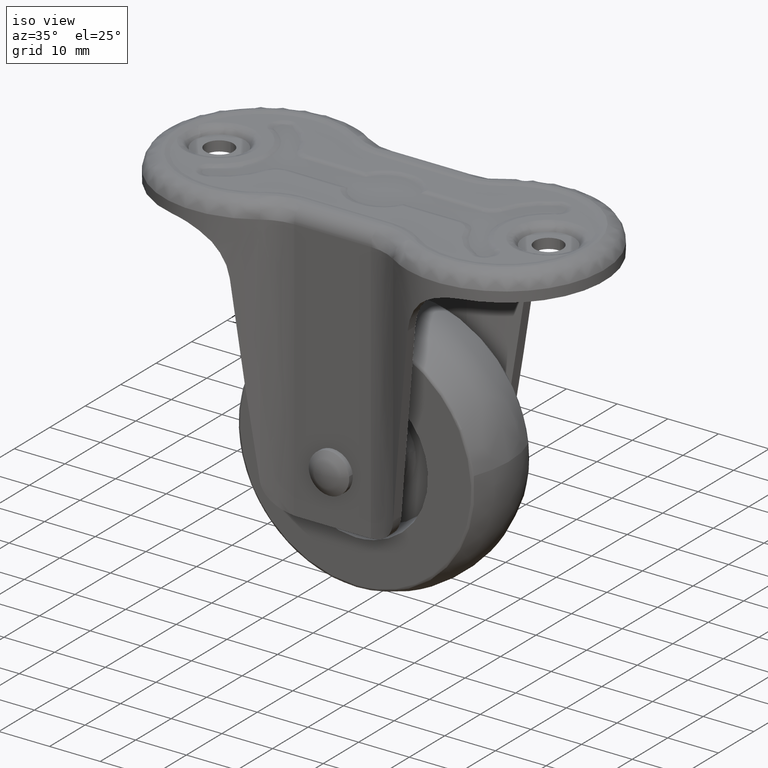
[diagram: clean part render]
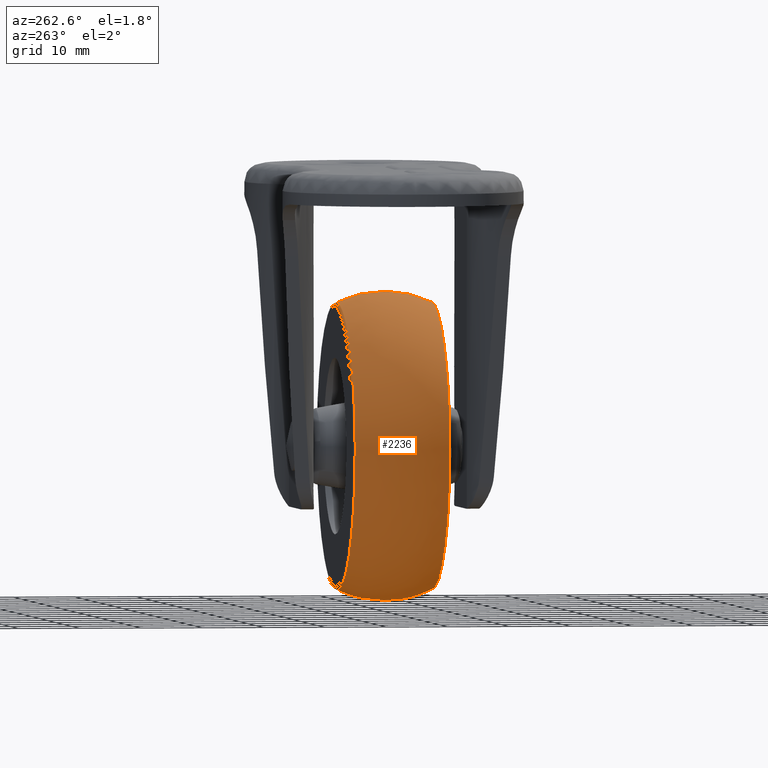
[diagram: tour spotlight — one face highlighted and labeled with its STEP entity id]
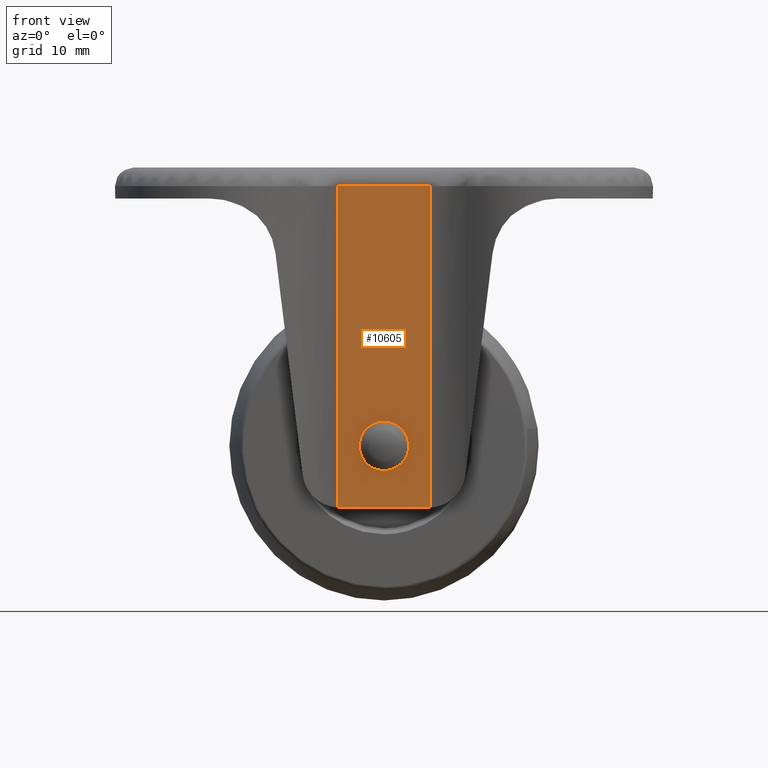
[diagram: tour spotlight — one face highlighted and labeled with its STEP entity id]
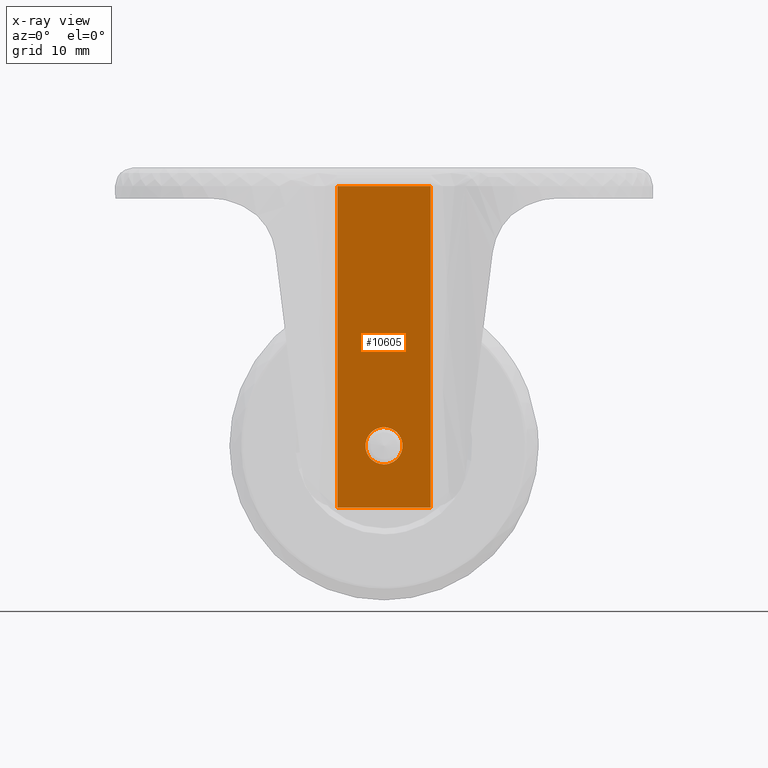
[diagram: x-ray of the same camera — body ghosted, this tour face saturated]
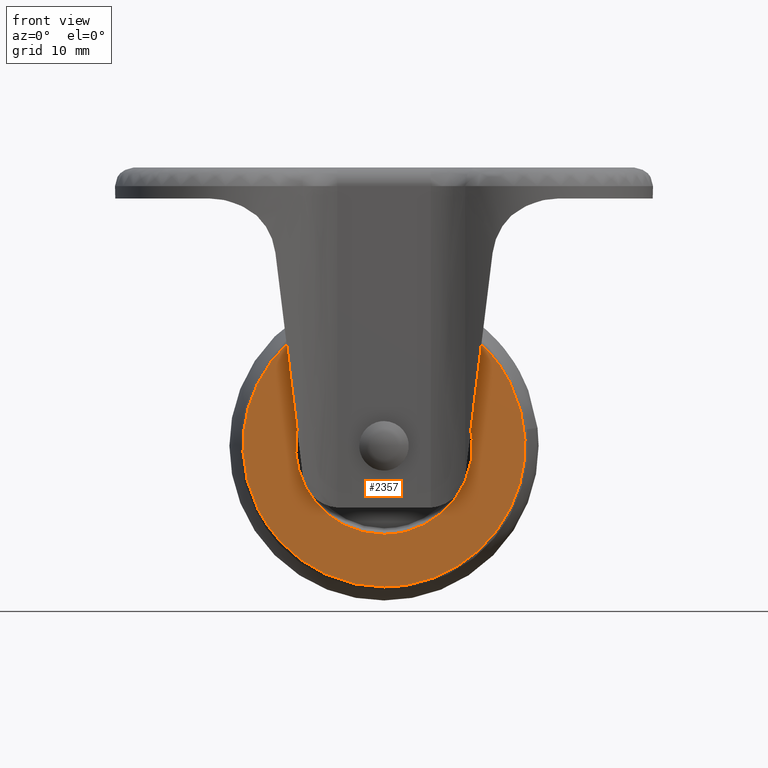
[diagram: tour spotlight — one face highlighted and labeled with its STEP entity id]
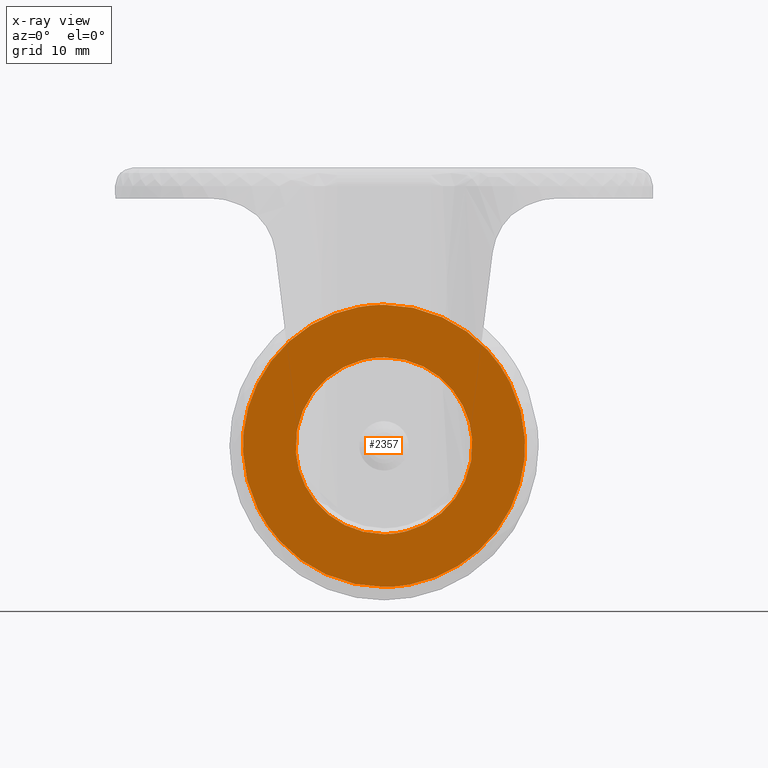
[diagram: x-ray of the same camera — body ghosted, this tour face saturated]
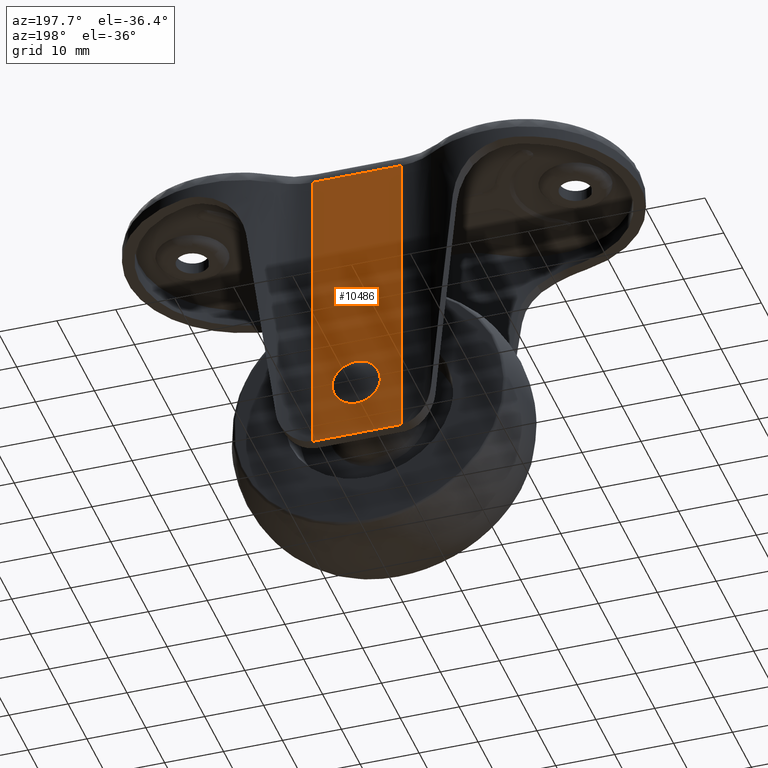
[diagram: tour spotlight — one face highlighted and labeled with its STEP entity id]
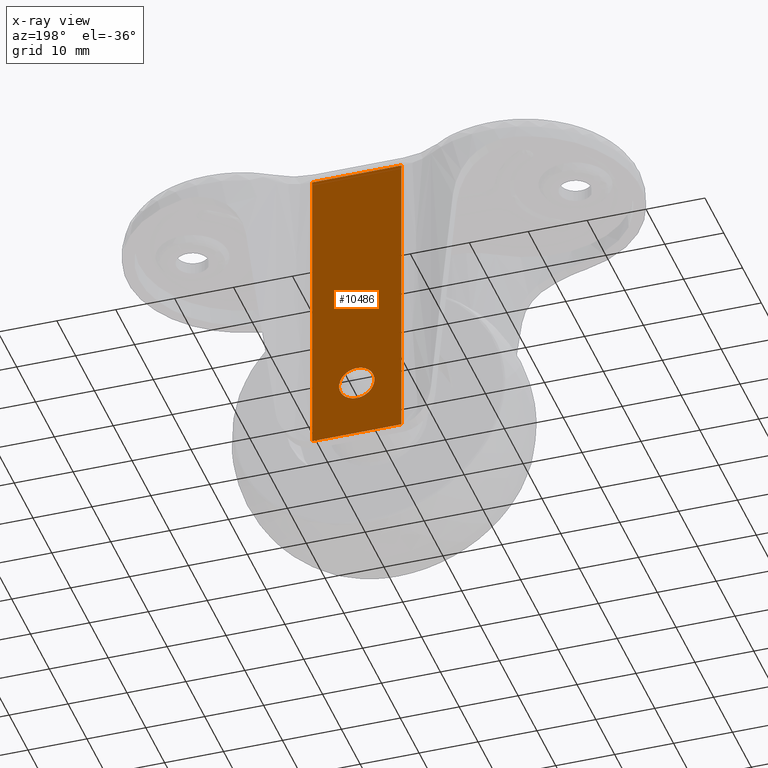
[diagram: x-ray of the same camera — body ghosted, this tour face saturated]
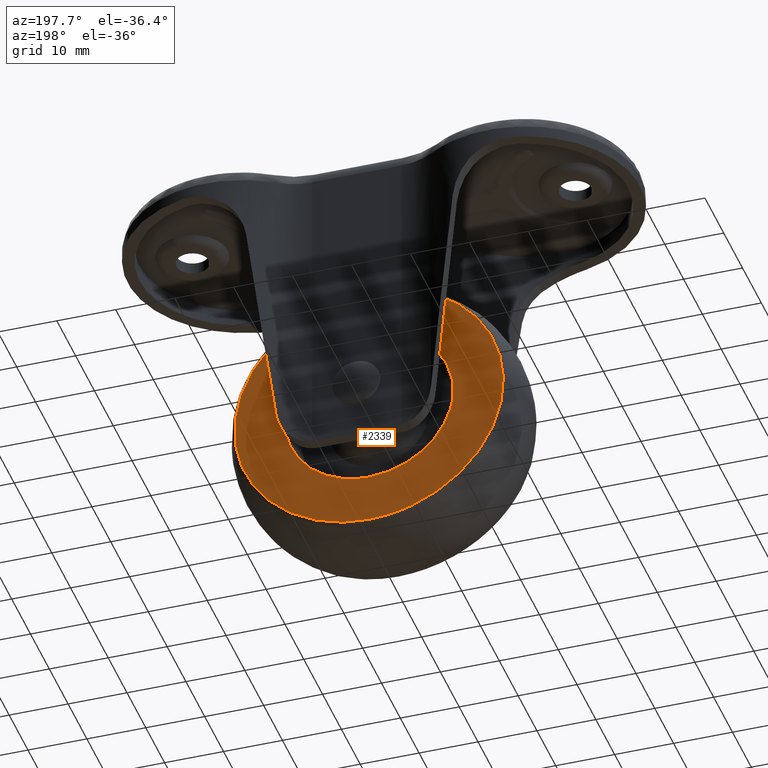
[diagram: tour spotlight — one face highlighted and labeled with its STEP entity id]
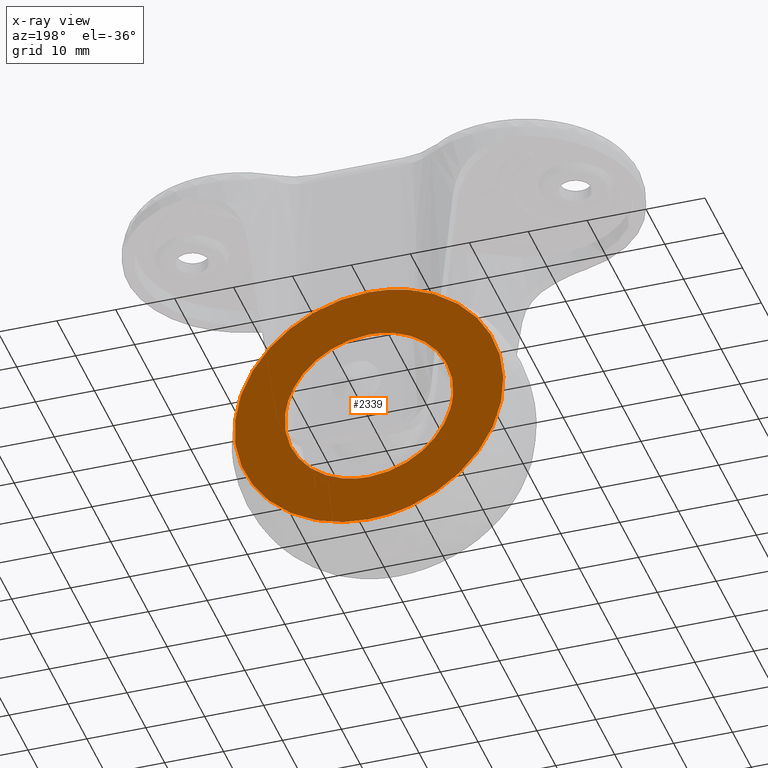
[diagram: x-ray of the same camera — body ghosted, this tour face saturated]
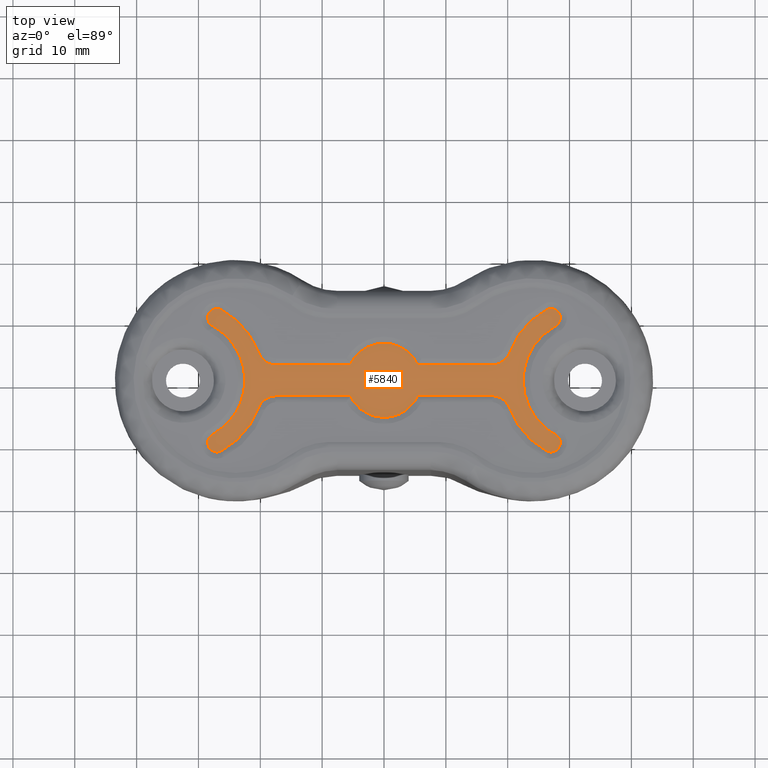
[diagram: tour spotlight — one face highlighted and labeled with its STEP entity id]
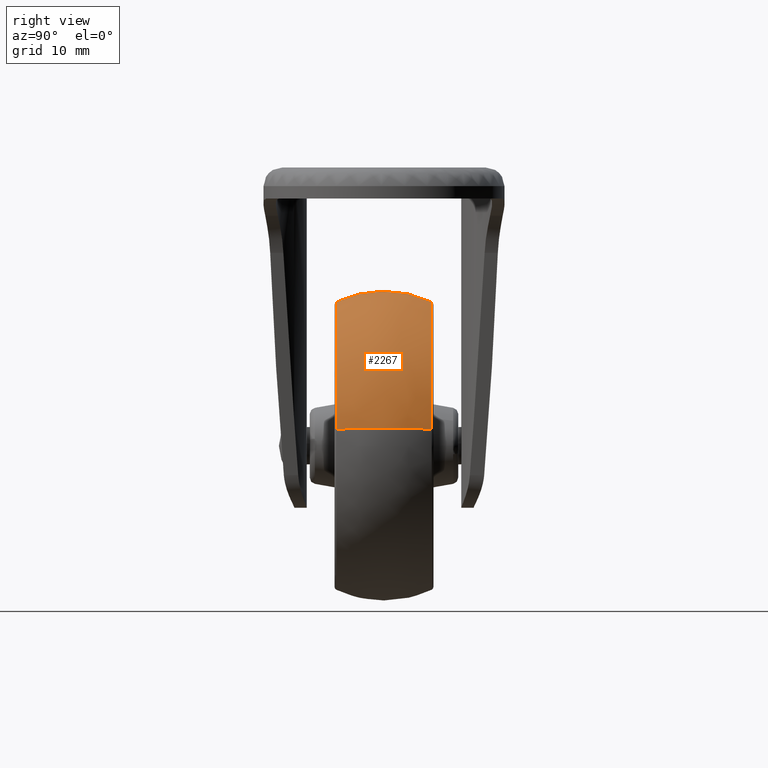
[diagram: tour spotlight — one face highlighted and labeled with its STEP entity id]
A machine part: a face-by-face anatomy tour. The part has 168 B-rep faces; the first image is the clean iso view, then the 7 largest visible faces are spotlighted one at a time (largest first), each with its STEP entity span.

Face 1 — auxiliary view, entity #2236. In plain terms, the highlighted face is a freeform B-spline surface patch.
Definition (entity closure, byte-faithful):
#1600=CARTESIAN_POINT('',(-7.408295689124408,7.714285935120080,-67.052005104727641));
#1601=VERTEX_POINT('',#1600);
#1615=CARTESIAN_POINT('',(-21.049118141319141,7.714292544302753,-35.095036851654619));
#1616=VERTEX_POINT('',#1615);
#1617=CARTESIAN_POINT('',(-7.408295689124408,7.714285935120080,-67.052005104727641));
#1618=CARTESIAN_POINT('',(-23.263141949676701,7.714287140138301,-61.725624339162721));
#1619=CARTESIAN_POINT('',(-23.263141949676701,7.714290778469008,-45.000002325170463));
#1620=CARTESIAN_POINT('',(-23.263141949676701,7.714291909611553,-39.800072968966781));
#1621=CARTESIAN_POINT('',(-21.049118141319138,7.714292544302754,-35.095036851654619));
#1629=(BOUNDED_CURVE()B_SPLINE_CURVE(2,(#1617,#1618,#1619,#1620,#1621),.UNSPECIFIED.,.F.,.U.)B_SPLINE_CURVE_WITH_KNOTS((3,2,3),(0.554134442552994,0.750000000000000,0.822331555412741),.UNSPECIFIED.)CURVE()GEOMETRIC_REPRESENTATION_ITEM()RATIONAL_B_SPLINE_CURVE((0.900621820407928,0.770529225698621,1.0,0.915258311653515,0.879552608318254))REPRESENTATION_ITEM(''));
#1630=EDGE_CURVE('',#1601,#1616,#1629,.T.);
#1723=CARTESIAN_POINT('',(0.0,7.714295838908325,-21.736862700664229));
#1724=VERTEX_POINT('',#1723);
#1725=CARTESIAN_POINT('',(-21.049118141319131,7.714292544302753,-35.095036851654619));
#1726=CARTESIAN_POINT('',(-14.763236698866228,7.714295838908324,-21.736862700664236));
#1727=CARTESIAN_POINT('',(0.0,7.714295838908325,-21.736862700664229));
#1735=(BOUNDED_CURVE()B_SPLINE_CURVE(2,(#1725,#1726,#1727),.UNSPECIFIED.,.F.,.U.)B_SPLINE_CURVE_WITH_KNOTS((3,3),(0.822331555412742,1.0),.UNSPECIFIED.)CURVE()GEOMETRIC_REPRESENTATION_ITEM()RATIONAL_B_SPLINE_CURVE((0.879552608318253,0.791848469533034,1.0))REPRESENTATION_ITEM(''));
#1736=EDGE_CURVE('',#1616,#1724,#1735,.T.);
#1738=CARTESIAN_POINT('',(23.107535384712708,7.714322026764759,-42.313964352734203));
#1739=VERTEX_POINT('',#1738);
#1753=CARTESIAN_POINT('',(0.0,7.714285718029690,-68.263141949676694));
#1754=VERTEX_POINT('',#1753);
#1755=CARTESIAN_POINT('',(23.107535384712708,7.714322026764758,-42.313964352734210));
#1756=CARTESIAN_POINT('',(23.263125428797021,7.714321090324816,-43.652476821742262));
#1757=CARTESIAN_POINT('',(23.263125919953119,7.714320038727145,-45.000001863305982));
#1758=CARTESIAN_POINT('',(23.263134399078403,7.714301884359610,-68.263142827363367));
#1759=CARTESIAN_POINT('',(0.0,7.714285718029690,-68.263141949676694));
#1767=(BOUNDED_CURVE()B_SPLINE_CURVE(2,(#1755,#1756,#1757,#1758,#1759),.UNSPECIFIED.,.F.,.U.)B_SPLINE_CURVE_WITH_KNOTS((3,2,3),(0.230000169381323,0.250000000000000,0.500000000000000),.UNSPECIFIED.)CURVE()GEOMETRIC_REPRESENTATION_ITEM()RATIONAL_B_SPLINE_CURVE((0.956886451574436,0.976568740937488,1.0,0.707106781186548,1.0))REPRESENTATION_ITEM(''));
#1768=EDGE_CURVE('',#1739,#1754,#1767,.T.);
#1770=CARTESIAN_POINT('',(0.0,7.714285718029690,-68.263141949676694));
#1771=CARTESIAN_POINT('',(-3.803148533248918,7.714285718029691,-68.263141949676694));
#1772=CARTESIAN_POINT('',(-7.408295689124408,7.714285935120080,-67.052005104727641));
#1780=(BOUNDED_CURVE()B_SPLINE_CURVE(2,(#1770,#1771,#1772),.UNSPECIFIED.,.F.,.U.)B_SPLINE_CURVE_WITH_KNOTS((3,3),(0.500000000000000,0.554134442552993),.UNSPECIFIED.)CURVE()GEOMETRIC_REPRESENTATION_ITEM()RATIONAL_B_SPLINE_CURVE((1.0,0.936577555487927,0.900621820407928))REPRESENTATION_ITEM(''));
#1781=EDGE_CURVE('',#1754,#1601,#1780,.T.);
#1810=CARTESIAN_POINT('',(-20.793559880707150,-7.714287980951607,-55.430802378788357));
#1811=VERTEX_POINT('',#1810);
#1812=CARTESIAN_POINT('',(0.0,-7.714295002656125,-21.736862153578940));
#1813=VERTEX_POINT('',#1812);
#1814=CARTESIAN_POINT('',(-20.793559880707150,-7.714287980951608,-55.430802378788357));
#1815=CARTESIAN_POINT('',(-23.263142188361346,-7.714289342267549,-50.507749722568938));
#1816=CARTESIAN_POINT('',(-23.263142188361350,-7.714290425862598,-45.000002170970149));
#1817=CARTESIAN_POINT('',(-23.263142188361350,-7.714295002656125,-21.736862153578940));
#1818=CARTESIAN_POINT('',(0.0,-7.714295002656125,-21.736862153578940));
#1826=(BOUNDED_CURVE()B_SPLINE_CURVE(2,(#1814,#1815,#1816,#1817,#1818),.UNSPECIFIED.,.F.,.U.)B_SPLINE_CURVE_WITH_KNOTS((3,2,3),(0.673769069239604,0.750000000000000,1.0),.UNSPECIFIED.)CURVE()GEOMETRIC_REPRESENTATION_ITEM()RATIONAL_B_SPLINE_CURVE((0.875845349275264,0.910689909265769,1.0,0.707106781186547,1.0))REPRESENTATION_ITEM(''));
#1827=EDGE_CURVE('',#1811,#1813,#1826,.T.);
#1930=CARTESIAN_POINT('',(0.0,-7.714285849069070,-68.263142188361357));
#1931=VERTEX_POINT('',#1930);
#1932=CARTESIAN_POINT('',(0.0,-7.714285849069070,-68.263142188361357));
#1933=CARTESIAN_POINT('',(-14.356394760204827,-7.714285849069070,-68.263142188361371));
#1934=CARTESIAN_POINT('',(-20.793559880707146,-7.714287980951606,-55.430802378788371));
#1942=(BOUNDED_CURVE()B_SPLINE_CURVE(2,(#1932,#1933,#1934),.UNSPECIFIED.,.F.,.U.)B_SPLINE_CURVE_WITH_KNOTS((3,3),(0.500000000000000,0.673769069239604),.UNSPECIFIED.)CURVE()GEOMETRIC_REPRESENTATION_ITEM()RATIONAL_B_SPLINE_CURVE((1.0,0.796416871920778,0.875845349275265))REPRESENTATION_ITEM(''));
#1943=EDGE_CURVE('',#1931,#1811,#1942,.T.);
#1945=CARTESIAN_POINT('',(23.107549890446819,-7.714285848978059,-42.313939215423872));
#1946=VERTEX_POINT('',#1945);
#1947=CARTESIAN_POINT('',(23.107549890446823,-7.714285848978059,-42.313939215423872));
#1948=CARTESIAN_POINT('',(23.263142188361343,-7.714285849069070,-43.652463201250846));
#1949=CARTESIAN_POINT('',(23.263142188361350,-7.714285849069070,-45.0));
#1950=CARTESIAN_POINT('',(23.263142188361350,-7.714285849069070,-68.263142188361357));
#1951=CARTESIAN_POINT('',(0.0,-7.714285849069070,-68.263142188361357));
#1959=(BOUNDED_CURVE()B_SPLINE_CURVE(2,(#1947,#1948,#1949,#1950,#1951),.UNSPECIFIED.,.F.,.U.)B_SPLINE_CURVE_WITH_KNOTS((3,2,3),(0.229999999999036,0.250000000000000,0.500000000000000),.UNSPECIFIED.)CURVE()GEOMETRIC_REPRESENTATION_ITEM()RATIONAL_B_SPLINE_CURVE((0.956886118188762,0.976568542493794,1.0,0.707106781186547,1.0))REPRESENTATION_ITEM(''));
#1960=EDGE_CURVE('',#1946,#1931,#1959,.T.);
#2166=CARTESIAN_POINT('',(22.766522409677354,8.399963280264551,-42.353581397300943));
#2167=CARTESIAN_POINT('',(27.169043112293092,0.000015187313786,-41.841825035195434));
#2168=CARTESIAN_POINT('',(22.766534862463498,-8.399939520479329,-42.353579949768253));
#2169=CARTESIAN_POINT('',(22.919818368631390,8.399963280264549,-43.672350801839045));
#2170=CARTESIAN_POINT('',(27.351982976485615,0.000015187313785,-43.415614047075394));
#2171=CARTESIAN_POINT('',(22.919830905267041,-8.399939520479332,-43.672350075644182));
#2172=CARTESIAN_POINT('',(22.919818368631393,8.399963280264551,-45.0));
#2173=CARTESIAN_POINT('',(27.351982976485619,0.000015187313785,-45.000000000000007));
#2174=CARTESIAN_POINT('',(22.919830905267048,-8.399939520479331,-45.0));
#2175=CARTESIAN_POINT('',(22.919818368631400,8.399963280264549,-67.919818368631397));
#2176=CARTESIAN_POINT('',(27.351982976485615,0.000015187313786,-72.351982976485601));
#2177=CARTESIAN_POINT('',(22.919830905267052,-8.399939520479329,-67.919830905267034));
#2178=CARTESIAN_POINT('',(0.0,8.399963280264551,-67.919818368631383));
#2179=CARTESIAN_POINT('',(0.0,0.000015187313785,-72.351982976485601));
#2180=CARTESIAN_POINT('',(0.0,-8.399939520479331,-67.919830905267020));
#2181=CARTESIAN_POINT('',(-22.919818368631400,8.399963280264549,-67.919818368631397));
#2182=CARTESIAN_POINT('',(-27.351982976485615,0.000015187313786,-72.351982976485601));
#2183=CARTESIAN_POINT('',(-22.919830905267052,-8.399939520479329,-67.919830905267034));
#2184=CARTESIAN_POINT('',(-22.919818368631393,8.399963280264551,-45.0));
#2185=CARTESIAN_POINT('',(-27.351982976485619,0.000015187313785,-45.000000000000007));
#2186=CARTESIAN_POINT('',(-22.919830905267048,-8.399939520479331,-45.0));
#2187=CARTESIAN_POINT('',(-22.919818368631400,8.399963280264549,-22.080181631368596));
#2188=CARTESIAN_POINT('',(-27.351982976485615,0.000015187313786,-17.648017023514381));
#2189=CARTESIAN_POINT('',(-22.919830905267052,-8.399939520479329,-22.080169094732955));
#2190=CARTESIAN_POINT('',(0.0,8.399963280264551,-22.080181631368607));
#2191=CARTESIAN_POINT('',(0.0,0.000015187313785,-17.648017023514385));
#2192=CARTESIAN_POINT('',(0.0,-8.399939520479331,-22.080169094732948));
#2200=(BOUNDED_SURFACE()B_SPLINE_SURFACE(2,2,((#2166,#2169,#2172,#2175,#2178,#2181,#2184,#2187,#2190),(#2167,#2170,#2173,#2176,#2179,#2182,#2185,#2188,#2191),(#2168,#2171,#2174,#2177,#2180,#2183,#2186,#2189,#2192)),.UNSPECIFIED.,.F.,.F.,.U.)B_SPLINE_SURFACE_WITH_KNOTS((3,3),(3,2,2,2,3),(0.0,17.830177699918181),(0.0,3.313707807690575,44.735064044991049,86.156420282291521,127.577776519592010),.UNSPECIFIED.)GEOMETRIC_REPRESENTATION_ITEM()RATIONAL_B_SPLINE_SURFACE(((0.909942546143458,0.928659373325820,0.950941309562275,0.672417048501901,0.950941309562275,0.672417048501901,0.950941309562275,0.672417048501901,0.950941309562275),(0.804784615961060,0.821338424374357,0.841045338369009,0.594708862046061,0.841045338369009,0.594708862046061,0.841045338369009,0.594708862046061,0.841045338369009),(0.909942209832284,0.928659030096980,0.950940958098120,0.672416799979213,0.950940958098120,0.672416799979213,0.950940958098120,0.672416799979213,0.950940958098120)))REPRESENTATION_ITEM('')SURFACE());
#2201=ORIENTED_EDGE('',*,*,#1768,.F.);
#2202=CARTESIAN_POINT('',(23.107535384712712,7.714322026764759,-42.313964352734203));
#2203=CARTESIAN_POINT('',(26.742294681376940,0.000022165484066,-41.891442042780369));
#2204=CARTESIAN_POINT('',(23.107549890446816,-7.714285848978060,-42.313939215423872));
#2212=(BOUNDED_CURVE()B_SPLINE_CURVE(2,(#2202,#2203,#2204),.UNSPECIFIED.,.F.,.U.)B_SPLINE_CURVE_WITH_KNOTS((3,3),(0.389861002283586,0.610138425113452),.UNSPECIFIED.)CURVE()GEOMETRIC_REPRESENTATION_ITEM()RATIONAL_B_SPLINE_CURVE((0.900825176515958,0.813902028670134,0.900824724610158))REPRESENTATION_ITEM(''));
#2213=EDGE_CURVE('',#1739,#1946,#2212,.T.);
#2214=ORIENTED_EDGE('',*,*,#2213,.T.);
#2215=ORIENTED_EDGE('',*,*,#1960,.T.);
#2216=ORIENTED_EDGE('',*,*,#1943,.T.);
#2217=ORIENTED_EDGE('',*,*,#1827,.T.);
#2218=CARTESIAN_POINT('',(0.0,7.714295838908325,-21.736862700664236));
#2219=CARTESIAN_POINT('',(0.0,0.000000547878973,-18.077645083869584));
#2220=CARTESIAN_POINT('',(0.0,-7.714295002656125,-21.736862153578937));
#2228=(BOUNDED_CURVE()B_SPLINE_CURVE(2,(#2218,#2219,#2220),.UNSPECIFIED.,.F.,.U.)B_SPLINE_CURVE_WITH_KNOTS((3,3),(0.389861416104096,0.610138569761105),.UNSPECIFIED.)CURVE()GEOMETRIC_REPRESENTATION_ITEM()RATIONAL_B_SPLINE_CURVE((0.941412810571922,0.850573667455992,0.941412798913945))REPRESENTATION_ITEM(''));
#2229=EDGE_CURVE('',#1724,#1813,#2228,.T.);
#2230=ORIENTED_EDGE('',*,*,#2229,.F.);
#2231=ORIENTED_EDGE('',*,*,#1736,.F.);
#2232=ORIENTED_EDGE('',*,*,#1630,.F.);
#2233=ORIENTED_EDGE('',*,*,#1781,.F.);
#2234=EDGE_LOOP('',(#2201,#2214,#2215,#2216,#2217,#2230,#2231,#2232,#2233));
#2235=FACE_OUTER_BOUND('',#2234,.T.);
#2236=ADVANCED_FACE('',(#2235),#2200,.T.);

Face 2 — front view, entity #10605. An x-ray twin of the same camera follows (body ghosted, this face saturated) — the face is partly hidden behind the body. In plain terms, the highlighted face is a freeform B-spline surface patch.
Definition (entity closure, byte-faithful):
#3010=CARTESIAN_POINT('',(2.990752001194727,-14.500000000000000,-44.764622712757301));
#3011=VERTEX_POINT('',#3010);
#3017=CARTESIAN_POINT('',(0.0,-14.500000000000000,-41.999999999999993));
#3018=VERTEX_POINT('',#3017);
#3019=CARTESIAN_POINT('',(0.0,-14.500000000000000,-41.999999999999993));
#3020=CARTESIAN_POINT('',(2.773171474864566,-14.500000000000002,-42.0));
#3021=CARTESIAN_POINT('',(2.990752001194727,-14.499999999999998,-44.764622712757301));
#3029=(BOUNDED_CURVE()B_SPLINE_CURVE(2,(#3019,#3020,#3021),.UNSPECIFIED.,.F.,.U.)B_SPLINE_CURVE_WITH_KNOTS((3,3),(0.0,0.236331300625985),.UNSPECIFIED.)CURVE()GEOMETRIC_REPRESENTATION_ITEM()RATIONAL_B_SPLINE_CURVE((1.0,0.723120658613143,0.969723356157661))REPRESENTATION_ITEM(''));
#3030=EDGE_CURVE('',#3018,#3011,#3029,.T.);
#3032=CARTESIAN_POINT('',(-2.990752001194728,-14.500000000000000,-45.235377287242699));
#3033=VERTEX_POINT('',#3032);
#3034=CARTESIAN_POINT('',(-2.990752001194728,-14.500000000000002,-45.235377287242706));
#3035=CARTESIAN_POINT('',(-3.000000000000000,-14.499999999999996,-45.117870321082442));
#3036=CARTESIAN_POINT('',(-3.0,-14.500000000000000,-45.0));
#3037=CARTESIAN_POINT('',(-3.0,-14.500000000000000,-41.999999999999993));
#3038=CARTESIAN_POINT('',(0.0,-14.500000000000000,-41.999999999999993));
#3046=(BOUNDED_CURVE()B_SPLINE_CURVE(2,(#3034,#3035,#3036,#3037,#3038),.UNSPECIFIED.,.F.,.U.)B_SPLINE_CURVE_WITH_KNOTS((3,2,3),(0.736331300625985,0.750000000000000,1.0),.UNSPECIFIED.)CURVE()GEOMETRIC_REPRESENTATION_ITEM()RATIONAL_B_SPLINE_CURVE((0.969723356157662,0.983986122573405,1.0,0.707106781186548,1.0))REPRESENTATION_ITEM(''));
#3047=EDGE_CURVE('',#3033,#3018,#3046,.T.);
#3123=CARTESIAN_POINT('',(0.0,-14.500000000000000,-48.0));
#3124=VERTEX_POINT('',#3123);
#3125=CARTESIAN_POINT('',(0.0,-14.500000000000000,-48.0));
#3126=CARTESIAN_POINT('',(-2.773171474864568,-14.500000000000005,-48.0));
#3127=CARTESIAN_POINT('',(-2.990752001194728,-14.500000000000002,-45.235377287242706));
#3135=(BOUNDED_CURVE()B_SPLINE_CURVE(2,(#3125,#3126,#3127),.UNSPECIFIED.,.F.,.U.)B_SPLINE_CURVE_WITH_KNOTS((3,3),(0.500000000000000,0.736331300625985),.UNSPECIFIED.)CURVE()GEOMETRIC_REPRESENTATION_ITEM()RATIONAL_B_SPLINE_CURVE((1.0,0.723120658613142,0.969723356157662))REPRESENTATION_ITEM(''));
#3136=EDGE_CURVE('',#3124,#3033,#3135,.T.);
#3138=CARTESIAN_POINT('',(2.990752001194727,-14.499999999999998,-44.764622712757301));
#3139=CARTESIAN_POINT('',(3.000000000000000,-14.500000000000000,-44.882129678917551));
#3140=CARTESIAN_POINT('',(3.0,-14.500000000000000,-45.0));
#3141=CARTESIAN_POINT('',(3.0,-14.500000000000000,-48.000000000000014));
#3142=CARTESIAN_POINT('',(0.0,-14.500000000000000,-48.0));
#3150=(BOUNDED_CURVE()B_SPLINE_CURVE(2,(#3138,#3139,#3140,#3141,#3142),.UNSPECIFIED.,.F.,.U.)B_SPLINE_CURVE_WITH_KNOTS((3,2,3),(0.236331300625985,0.250000000000000,0.500000000000000),.UNSPECIFIED.)CURVE()GEOMETRIC_REPRESENTATION_ITEM()RATIONAL_B_SPLINE_CURVE((0.969723356157661,0.983986122573405,1.0,0.707106781186548,1.0))REPRESENTATION_ITEM(''));
#3151=EDGE_CURVE('',#3011,#3124,#3150,.T.);
#6135=CARTESIAN_POINT('',(7.568322999999910,-14.500000000000000,-3.0));
#6136=VERTEX_POINT('',#6135);
#6280=CARTESIAN_POINT('',(-7.568323000000000,-14.500000000000000,-3.0));
#6281=VERTEX_POINT('',#6280);
#6295=CARTESIAN_POINT('',(7.568322999999910,-14.500000000000000,-3.0));
#6296=CARTESIAN_POINT('',(-7.568323000000000,-14.500000000000000,-3.0));
#6297=QUASI_UNIFORM_CURVE('',1,(#6295,#6296),.UNSPECIFIED.,.F.,.U.);
#6298=EDGE_CURVE('',#6136,#6281,#6297,.T.);
#8912=CARTESIAN_POINT('',(7.568322999999910,-14.500000000000000,-54.988164655750197));
#8913=VERTEX_POINT('',#8912);
#8914=CARTESIAN_POINT('',(7.191647999999790,-14.500000000000000,-55.0));
#8915=VERTEX_POINT('',#8914);
#8916=CARTESIAN_POINT('',(7.568322999999904,-14.500000000000000,-54.988164655750118));
#8917=CARTESIAN_POINT('',(7.380171436647496,-14.499999999999996,-54.999999999999993));
#8918=CARTESIAN_POINT('',(7.191647999999790,-14.500000000000000,-55.0));
#8926=(BOUNDED_CURVE()B_SPLINE_CURVE(2,(#8916,#8917,#8918),.UNSPECIFIED.,.F.,.U.)CURVE()GEOMETRIC_REPRESENTATION_ITEM()QUASI_UNIFORM_CURVE()RATIONAL_B_SPLINE_CURVE((1.0,0.999506739003049,1.0))REPRESENTATION_ITEM(''));
#8927=EDGE_CURVE('',#8913,#8915,#8926,.T.);
#9894=CARTESIAN_POINT('',(-7.191648000000000,-14.500000000000000,-55.0));
#9895=VERTEX_POINT('',#9894);
#9901=CARTESIAN_POINT('',(-7.568323000000000,-14.500000000000000,-54.988164655750097));
#9902=VERTEX_POINT('',#9901);
#9903=CARTESIAN_POINT('',(-7.191648000000000,-14.500000000000000,-55.0));
#9904=CARTESIAN_POINT('',(-7.380171436647659,-14.500000000000000,-55.0));
#9905=CARTESIAN_POINT('',(-7.568323000000000,-14.500000000000000,-54.988164655750133));
#9913=(BOUNDED_CURVE()B_SPLINE_CURVE(2,(#9903,#9904,#9905),.UNSPECIFIED.,.F.,.U.)CURVE()GEOMETRIC_REPRESENTATION_ITEM()QUASI_UNIFORM_CURVE()RATIONAL_B_SPLINE_CURVE((1.0,0.999506739003050,1.0))REPRESENTATION_ITEM(''));
#9914=EDGE_CURVE('',#9895,#9902,#9913,.T.);
#10569=CARTESIAN_POINT('',(7.568322999999910,-14.500000000000000,-3.0));
#10570=CARTESIAN_POINT('',(7.568322999999910,-14.500000000000000,-54.988164655750197));
#10571=QUASI_UNIFORM_CURVE('',1,(#10569,#10570),.UNSPECIFIED.,.F.,.U.);
#10572=EDGE_CURVE('',#6136,#8913,#10571,.T.);
#10578=CARTESIAN_POINT('',(-8.324398580454243,-14.500000000000000,-57.597399899213912));
#10579=CARTESIAN_POINT('',(-8.324398580454245,-14.500000000000000,-0.402598706037403));
#10580=CARTESIAN_POINT('',(8.324398851118477,-14.500000000000000,-57.597399899213912));
#10581=CARTESIAN_POINT('',(8.324398851118477,-14.500000000000000,-0.402598706037403));
#10582=B_SPLINE_SURFACE_WITH_KNOTS('',1,1,((#10578,#10580),(#10579,#10581)),.UNSPECIFIED.,.F.,.F.,.U.,(2,2),(2,2),(0.0,57.194801193176509),(0.0,16.648797431572721),.UNSPECIFIED.);
#10583=ORIENTED_EDGE('',*,*,#10572,.F.);
#10584=ORIENTED_EDGE('',*,*,#6298,.T.);
#10585=CARTESIAN_POINT('',(-7.568323000000000,-14.500000000000000,-3.0));
#10586=CARTESIAN_POINT('',(-7.568323000000000,-14.500000000000000,-54.988164655750097));
#10587=QUASI_UNIFORM_CURVE('',1,(#10585,#10586),.UNSPECIFIED.,.F.,.U.);
#10588=EDGE_CURVE('',#6281,#9902,#10587,.T.);
#10589=ORIENTED_EDGE('',*,*,#10588,.T.);
#10590=ORIENTED_EDGE('',*,*,#9914,.F.);
#10591=CARTESIAN_POINT('',(-7.191648000000000,-14.500000000000000,-55.0));
#10592=CARTESIAN_POINT('',(7.191647999999790,-14.500000000000000,-55.0));
#10593=QUASI_UNIFORM_CURVE('',1,(#10591,#10592),.UNSPECIFIED.,.F.,.U.);
#10594=EDGE_CURVE('',#9895,#8915,#10593,.T.);
#10595=ORIENTED_EDGE('',*,*,#10594,.T.);
#10596=ORIENTED_EDGE('',*,*,#8927,.F.);
#10597=EDGE_LOOP('',(#10583,#10584,#10589,#10590,#10595,#10596));
#10598=FACE_OUTER_BOUND('',#10597,.T.);
#10599=ORIENTED_EDGE('',*,*,#3136,.T.);
#10600=ORIENTED_EDGE('',*,*,#3047,.T.);
#10601=ORIENTED_EDGE('',*,*,#3030,.T.);
#10602=ORIENTED_EDGE('',*,*,#3151,.T.);
#10603=EDGE_LOOP('',(#10599,#10600,#10601,#10602));
#10604=FACE_BOUND('',#10603,.T.);
#10605=ADVANCED_FACE('',(#10598,#10604),#10582,.F.);

Face 3 — front view, entity #2357. An x-ray twin of the same camera follows (body ghosted, this face saturated) — the face is partly hidden behind the body. In plain terms, the highlighted face is a freeform B-spline surface patch.
Definition (entity closure, byte-faithful):
#680=CARTESIAN_POINT('',(0.0,-8.0,-30.699999999999999));
#681=VERTEX_POINT('',#680);
#682=CARTESIAN_POINT('',(14.255917872380490,-8.000000000009159,-43.878034931028040));
#683=VERTEX_POINT('',#682);
#684=CARTESIAN_POINT('',(0.0,-8.0,-30.699999999999999));
#685=CARTESIAN_POINT('',(13.218784030593977,-8.0,-30.699999999999999));
#686=CARTESIAN_POINT('',(14.255917872380488,-8.000000000009159,-43.878034931028047));
#694=(BOUNDED_CURVE()B_SPLINE_CURVE(2,(#684,#685,#686),.UNSPECIFIED.,.F.,.U.)B_SPLINE_CURVE_WITH_KNOTS((3,3),(0.0,0.236331300631236),.UNSPECIFIED.)CURVE()GEOMETRIC_REPRESENTATION_ITEM()RATIONAL_B_SPLINE_CURVE((1.0,0.723120658606990,0.969723356168621))REPRESENTATION_ITEM(''));
#695=EDGE_CURVE('',#681,#683,#694,.T.);
#697=CARTESIAN_POINT('',(-14.255917872380490,-8.000000000009159,-46.121965068971967));
#698=VERTEX_POINT('',#697);
#699=CARTESIAN_POINT('',(-14.255917872380488,-8.000000000009159,-46.121965068971967));
#700=CARTESIAN_POINT('',(-14.299999999999997,-8.0,-45.561848530273608));
#701=CARTESIAN_POINT('',(-14.300000000000001,-8.0,-45.0));
#702=CARTESIAN_POINT('',(-14.299999999999999,-8.0,-30.699999999999999));
#703=CARTESIAN_POINT('',(0.0,-8.0,-30.699999999999999));
#711=(BOUNDED_CURVE()B_SPLINE_CURVE(2,(#699,#700,#701,#702,#703),.UNSPECIFIED.,.F.,.U.)B_SPLINE_CURVE_WITH_KNOTS((3,2,3),(0.736331300631236,0.750000000000000,1.0),.UNSPECIFIED.)CURVE()GEOMETRIC_REPRESENTATION_ITEM()RATIONAL_B_SPLINE_CURVE((0.969723356168621,0.983986122579558,1.0,0.707106781186548,1.0))REPRESENTATION_ITEM(''));
#712=EDGE_CURVE('',#698,#681,#711,.T.);
#779=CARTESIAN_POINT('',(0.0,-8.0,-59.299999999999997));
#780=VERTEX_POINT('',#779);
#781=CARTESIAN_POINT('',(14.255917872380495,-8.000000000009159,-43.878034931028040));
#782=CARTESIAN_POINT('',(14.300000000000004,-8.0,-44.438151469726392));
#783=CARTESIAN_POINT('',(14.300000000000001,-8.0,-45.0));
#784=CARTESIAN_POINT('',(14.299999999999999,-8.0,-59.299999999999997));
#785=CARTESIAN_POINT('',(0.0,-8.0,-59.299999999999997));
#793=(BOUNDED_CURVE()B_SPLINE_CURVE(2,(#781,#782,#783,#784,#785),.UNSPECIFIED.,.F.,.U.)B_SPLINE_CURVE_WITH_KNOTS((3,2,3),(0.236331300631237,0.250000000000000,0.500000000000000),.UNSPECIFIED.)CURVE()GEOMETRIC_REPRESENTATION_ITEM()RATIONAL_B_SPLINE_CURVE((0.969723356168622,0.983986122579558,1.0,0.707106781186548,1.0))REPRESENTATION_ITEM(''));
#794=EDGE_CURVE('',#683,#780,#793,.T.);
#828=CARTESIAN_POINT('',(0.0,-8.0,-59.299999999999997));
#829=CARTESIAN_POINT('',(-13.218784030593964,-8.0,-59.299999999999997));
#830=CARTESIAN_POINT('',(-14.255917872380495,-8.000000000009159,-46.121965068971967));
#838=(BOUNDED_CURVE()B_SPLINE_CURVE(2,(#828,#829,#830),.UNSPECIFIED.,.F.,.U.)B_SPLINE_CURVE_WITH_KNOTS((3,3),(0.500000000000000,0.736331300631236),.UNSPECIFIED.)CURVE()GEOMETRIC_REPRESENTATION_ITEM()RATIONAL_B_SPLINE_CURVE((1.0,0.723120658606990,0.969723356168621))REPRESENTATION_ITEM(''));
#839=EDGE_CURVE('',#780,#698,#838,.T.);
#1829=CARTESIAN_POINT('',(-20.389763544364460,-8.0,-55.228243518780097));
#1830=VERTEX_POINT('',#1829);
#1844=CARTESIAN_POINT('',(0.0,-8.0,-22.188611999999999));
#1845=VERTEX_POINT('',#1844);
#1846=CARTESIAN_POINT('',(-20.389763544364463,-8.0,-55.228243518780104));
#1847=CARTESIAN_POINT('',(-22.811388000000001,-8.0,-50.400791948360315));
#1848=CARTESIAN_POINT('',(-22.811388000000001,-8.0,-45.0));
#1849=CARTESIAN_POINT('',(-22.811388000000004,-8.0,-22.188611999999996));
#1850=CARTESIAN_POINT('',(0.0,-8.0,-22.188611999999999));
#1858=(BOUNDED_CURVE()B_SPLINE_CURVE(2,(#1846,#1847,#1848,#1849,#1850),.UNSPECIFIED.,.F.,.U.)B_SPLINE_CURVE_WITH_KNOTS((3,2,3),(0.673769062114987,0.750000000000000,1.0),.UNSPECIFIED.)CURVE()GEOMETRIC_REPRESENTATION_ITEM()RATIONAL_B_SPLINE_CURVE((0.875845342762052,0.910689900918761,1.0,0.707106781186548,1.0))REPRESENTATION_ITEM(''));
#1859=EDGE_CURVE('',#1830,#1845,#1858,.T.);
#1861=CARTESIAN_POINT('',(20.389763544364460,-8.0,-34.771756481219903));
#1862=VERTEX_POINT('',#1861);
#1863=CARTESIAN_POINT('',(0.0,-8.0,-22.188611999999999));
#1864=CARTESIAN_POINT('',(14.077602743644182,-8.0,-22.188612000000003));
#1865=CARTESIAN_POINT('',(20.389763544364463,-8.0,-34.771756481219903));
#1873=(BOUNDED_CURVE()B_SPLINE_CURVE(2,(#1863,#1864,#1865),.UNSPECIFIED.,.F.,.U.)B_SPLINE_CURVE_WITH_KNOTS((3,3),(0.0,0.173769062114987),.UNSPECIFIED.)CURVE()GEOMETRIC_REPRESENTATION_ITEM()RATIONAL_B_SPLINE_CURVE((1.0,0.796416880267786,0.875845342762052))REPRESENTATION_ITEM(''));
#1874=EDGE_CURVE('',#1845,#1862,#1873,.T.);
#1976=CARTESIAN_POINT('',(0.0,-8.0,-67.811387999999994));
#1977=VERTEX_POINT('',#1976);
#1978=CARTESIAN_POINT('',(20.389763544364463,-8.0,-34.771756481219903));
#1979=CARTESIAN_POINT('',(22.811388000000001,-8.0,-39.599208051639678));
#1980=CARTESIAN_POINT('',(22.811388000000001,-8.0,-45.0));
#1981=CARTESIAN_POINT('',(22.811388000000004,-8.0,-67.811387999999994));
#1982=CARTESIAN_POINT('',(0.0,-8.0,-67.811387999999994));
#1990=(BOUNDED_CURVE()B_SPLINE_CURVE(2,(#1978,#1979,#1980,#1981,#1982),.UNSPECIFIED.,.F.,.U.)B_SPLINE_CURVE_WITH_KNOTS((3,2,3),(0.173769062114987,0.250000000000000,0.500000000000000),.UNSPECIFIED.)CURVE()GEOMETRIC_REPRESENTATION_ITEM()RATIONAL_B_SPLINE_CURVE((0.875845342762052,0.910689900918761,1.0,0.707106781186548,1.0))REPRESENTATION_ITEM(''));
#1991=EDGE_CURVE('',#1862,#1977,#1990,.T.);
#1993=CARTESIAN_POINT('',(0.0,-8.0,-67.811387999999994));
#1994=CARTESIAN_POINT('',(-14.077602743644231,-8.0,-67.811387999999994));
#1995=CARTESIAN_POINT('',(-20.389763544364452,-8.0,-55.228243518780111));
#2003=(BOUNDED_CURVE()B_SPLINE_CURVE(2,(#1993,#1994,#1995),.UNSPECIFIED.,.F.,.U.)B_SPLINE_CURVE_WITH_KNOTS((3,3),(0.500000000000000,0.673769062114988),.UNSPECIFIED.)CURVE()GEOMETRIC_REPRESENTATION_ITEM()RATIONAL_B_SPLINE_CURVE((1.0,0.796416880267786,0.875845342762053))REPRESENTATION_ITEM(''));
#2004=EDGE_CURVE('',#1977,#1830,#2003,.T.);
#2340=CARTESIAN_POINT('',(-25.088978576687079,-8.0,-19.909754590222398));
#2341=CARTESIAN_POINT('',(-25.088978576687079,-8.0,-70.090243370280589));
#2342=CARTESIAN_POINT('',(25.088976946667181,-8.0,-19.909754590222398));
#2343=CARTESIAN_POINT('',(25.088976946667181,-8.0,-70.090243370280589));
#2344=B_SPLINE_SURFACE_WITH_KNOTS('',1,1,((#2340,#2342),(#2341,#2343)),.UNSPECIFIED.,.F.,.F.,.U.,(2,2),(2,2),(0.0,50.180488780058198),(0.0,50.177955523354257),.UNSPECIFIED.);
#2345=ORIENTED_EDGE('',*,*,#1859,.F.);
#2346=ORIENTED_EDGE('',*,*,#2004,.F.);
#2347=ORIENTED_EDGE('',*,*,#1991,.F.);
#2348=ORIENTED_EDGE('',*,*,#1874,.F.);
#2349=EDGE_LOOP('',(#2345,#2346,#2347,#2348));
#2350=FACE_OUTER_BOUND('',#2349,.T.);
#2351=ORIENTED_EDGE('',*,*,#839,.T.);
#2352=ORIENTED_EDGE('',*,*,#712,.T.);
#2353=ORIENTED_EDGE('',*,*,#695,.T.);
#2354=ORIENTED_EDGE('',*,*,#794,.T.);
#2355=EDGE_LOOP('',(#2351,#2352,#2353,#2354));
#2356=FACE_BOUND('',#2355,.T.);
#2357=ADVANCED_FACE('',(#2350,#2356),#2344,.T.);

Face 4 — auxiliary view, entity #10486. An x-ray twin of the same camera follows (body ghosted, this face saturated) — the face is partly hidden behind the body. In plain terms, the highlighted face is a freeform B-spline surface patch.
Definition (entity closure, byte-faithful):
#2845=CARTESIAN_POINT('',(-2.994404572714460,14.500000000000000,-44.816857282704767));
#2846=VERTEX_POINT('',#2845);
#2852=CARTESIAN_POINT('',(0.0,14.500000000000000,-41.999999999999993));
#2853=VERTEX_POINT('',#2852);
#2854=CARTESIAN_POINT('',(0.0,14.500000000000000,-41.999999999999993));
#2855=CARTESIAN_POINT('',(-2.822120940207349,14.499999999999995,-42.0));
#2856=CARTESIAN_POINT('',(-2.994404572714460,14.500000000000000,-44.816857282704774));
#2864=(BOUNDED_CURVE()B_SPLINE_CURVE(2,(#2854,#2855,#2856),.UNSPECIFIED.,.F.,.U.)B_SPLINE_CURVE_WITH_KNOTS((3,3),(0.500000000000000,0.739333129424356),.UNSPECIFIED.)CURVE()GEOMETRIC_REPRESENTATION_ITEM()RATIONAL_B_SPLINE_CURVE((1.0,0.719603797416815,0.976072399977145))REPRESENTATION_ITEM(''));
#2865=EDGE_CURVE('',#2853,#2846,#2864,.T.);
#2867=CARTESIAN_POINT('',(2.979028579077197,14.500000000000000,-45.354102704086387));
#2868=VERTEX_POINT('',#2867);
#2869=CARTESIAN_POINT('',(2.979028579077197,14.500000000000005,-45.354102704086387));
#2870=CARTESIAN_POINT('',(3.000000000000000,14.499999999999998,-45.177672359073078));
#2871=CARTESIAN_POINT('',(3.0,14.500000000000000,-45.0));
#2872=CARTESIAN_POINT('',(3.0,14.500000000000000,-41.999999999999993));
#2873=CARTESIAN_POINT('',(0.0,14.500000000000000,-41.999999999999993));
#2881=(BOUNDED_CURVE()B_SPLINE_CURVE(2,(#2869,#2870,#2871,#2872,#2873),.UNSPECIFIED.,.F.,.U.)B_SPLINE_CURVE_WITH_KNOTS((3,2,3),(0.229562473502470,0.250000000000000,0.500000000000000),.UNSPECIFIED.)CURVE()GEOMETRIC_REPRESENTATION_ITEM()RATIONAL_B_SPLINE_CURVE((0.956026754162063,0.976055948318213,1.0,0.707106781186548,1.0))REPRESENTATION_ITEM(''));
#2882=EDGE_CURVE('',#2868,#2853,#2881,.T.);
#2926=CARTESIAN_POINT('',(0.0,14.500000000000000,-48.0));
#2927=VERTEX_POINT('',#2926);
#2928=CARTESIAN_POINT('',(0.0,14.500000000000000,-48.0));
#2929=CARTESIAN_POINT('',(2.664523577644931,14.500000000000004,-48.0));
#2930=CARTESIAN_POINT('',(2.979028579077197,14.500000000000004,-45.354102704086394));
#2938=(BOUNDED_CURVE()B_SPLINE_CURVE(2,(#2928,#2929,#2930),.UNSPECIFIED.,.F.,.U.)B_SPLINE_CURVE_WITH_KNOTS((3,3),(0.0,0.229562473502470),.UNSPECIFIED.)CURVE()GEOMETRIC_REPRESENTATION_ITEM()RATIONAL_B_SPLINE_CURVE((1.0,0.731050832868335,0.956026754162063))REPRESENTATION_ITEM(''));
#2939=EDGE_CURVE('',#2927,#2868,#2938,.T.);
#2941=CARTESIAN_POINT('',(-2.994404572714460,14.500000000000004,-44.816857282704781));
#2942=CARTESIAN_POINT('',(-3.000000000000000,14.499999999999995,-44.908343164826299));
#2943=CARTESIAN_POINT('',(-3.0,14.500000000000000,-45.0));
#2944=CARTESIAN_POINT('',(-3.0,14.500000000000000,-48.000000000000014));
#2945=CARTESIAN_POINT('',(0.0,14.500000000000000,-48.0));
#2953=(BOUNDED_CURVE()B_SPLINE_CURVE(2,(#2941,#2942,#2943,#2944,#2945),.UNSPECIFIED.,.F.,.U.)B_SPLINE_CURVE_WITH_KNOTS((3,2,3),(0.739333129424356,0.750000000000000,1.0),.UNSPECIFIED.)CURVE()GEOMETRIC_REPRESENTATION_ITEM()RATIONAL_B_SPLINE_CURVE((0.976072399977145,0.987502983769733,1.0,0.707106781186548,1.0))REPRESENTATION_ITEM(''));
#2954=EDGE_CURVE('',#2846,#2927,#2953,.T.);
#5875=CARTESIAN_POINT('',(7.568322999999910,14.500000000000000,-3.0));
#5876=VERTEX_POINT('',#5875);
#5935=CARTESIAN_POINT('',(-7.568323000000000,14.500000000000000,-3.0));
#5936=VERTEX_POINT('',#5935);
#5958=CARTESIAN_POINT('',(-7.568323000000000,14.500000000000000,-3.0));
#5959=CARTESIAN_POINT('',(7.568322999999910,14.500000000000000,-3.0));
#5960=QUASI_UNIFORM_CURVE('',1,(#5958,#5959),.UNSPECIFIED.,.F.,.U.);
#5961=EDGE_CURVE('',#5936,#5876,#5960,.T.);
#8831=CARTESIAN_POINT('',(7.191647999999790,14.500000000000000,-55.0));
#8832=VERTEX_POINT('',#8831);
#8838=CARTESIAN_POINT('',(7.568322999999910,14.500000000000000,-54.988164655750097));
#8839=VERTEX_POINT('',#8838);
#8840=CARTESIAN_POINT('',(7.191647999999790,14.500000000000000,-55.0));
#8841=CARTESIAN_POINT('',(7.380171436647507,14.499999999999996,-54.999999999999993));
#8842=CARTESIAN_POINT('',(7.568322999999911,14.500000000000000,-54.988164655750118));
#8850=(BOUNDED_CURVE()B_SPLINE_CURVE(2,(#8840,#8841,#8842),.UNSPECIFIED.,.F.,.U.)CURVE()GEOMETRIC_REPRESENTATION_ITEM()QUASI_UNIFORM_CURVE()RATIONAL_B_SPLINE_CURVE((1.0,0.999506739003049,1.0))REPRESENTATION_ITEM(''));
#8851=EDGE_CURVE('',#8832,#8839,#8850,.T.);
#9417=CARTESIAN_POINT('',(-7.568323000000000,14.500000000000000,-54.988164655750097));
#9418=VERTEX_POINT('',#9417);
#9454=CARTESIAN_POINT('',(-7.191648000000000,14.500000000000000,-55.0));
#9455=VERTEX_POINT('',#9454);
#9456=CARTESIAN_POINT('',(-7.568323000000003,14.500000000000000,-54.988164655750133));
#9457=CARTESIAN_POINT('',(-7.380171436647663,14.500000000000002,-54.999999999999993));
#9458=CARTESIAN_POINT('',(-7.191648000000000,14.500000000000000,-55.0));
#9466=(BOUNDED_CURVE()B_SPLINE_CURVE(2,(#9456,#9457,#9458),.UNSPECIFIED.,.F.,.U.)CURVE()GEOMETRIC_REPRESENTATION_ITEM()QUASI_UNIFORM_CURVE()RATIONAL_B_SPLINE_CURVE((1.0,0.999506739003050,1.0))REPRESENTATION_ITEM(''));
#9467=EDGE_CURVE('',#9418,#9455,#9466,.T.);
#10455=CARTESIAN_POINT('',(-8.324398580454243,14.500000000000000,-0.402600100786090));
#10456=CARTESIAN_POINT('',(-8.324398580454245,14.500000000000000,-57.597401293962598));
#10457=CARTESIAN_POINT('',(8.324398851118477,14.500000000000000,-0.402600100786090));
#10458=CARTESIAN_POINT('',(8.324398851118477,14.500000000000000,-57.597401293962612));
#10459=B_SPLINE_SURFACE_WITH_KNOTS('',1,1,((#10455,#10457),(#10456,#10458)),.UNSPECIFIED.,.F.,.F.,.U.,(2,2),(2,2),(0.0,57.194801193176517),(0.0,16.648797431572721),.UNSPECIFIED.);
#10460=CARTESIAN_POINT('',(-7.568323000000000,14.500000000000000,-3.0));
#10461=CARTESIAN_POINT('',(-7.568323000000000,14.500000000000000,-54.988164655750097));
#10462=QUASI_UNIFORM_CURVE('',1,(#10460,#10461),.UNSPECIFIED.,.F.,.U.);
#10463=EDGE_CURVE('',#5936,#9418,#10462,.T.);
#10464=ORIENTED_EDGE('',*,*,#10463,.F.);
#10465=ORIENTED_EDGE('',*,*,#5961,.T.);
#10466=CARTESIAN_POINT('',(7.568322999999910,14.500000000000000,-3.0));
#10467=CARTESIAN_POINT('',(7.568322999999910,14.500000000000000,-54.988164655750097));
#10468=QUASI_UNIFORM_CURVE('',1,(#10466,#10467),.UNSPECIFIED.,.F.,.U.);
#10469=EDGE_CURVE('',#5876,#8839,#10468,.T.);
#10470=ORIENTED_EDGE('',*,*,#10469,.T.);
#10471=ORIENTED_EDGE('',*,*,#8851,.F.);
#10472=CARTESIAN_POINT('',(7.191647999999790,14.500000000000000,-55.0));
#10473=CARTESIAN_POINT('',(-7.191648000000000,14.500000000000000,-55.0));
#10474=QUASI_UNIFORM_CURVE('',1,(#10472,#10473),.UNSPECIFIED.,.F.,.U.);
#10475=EDGE_CURVE('',#8832,#9455,#10474,.T.);
#10476=ORIENTED_EDGE('',*,*,#10475,.T.);
#10477=ORIENTED_EDGE('',*,*,#9467,.F.);
#10478=EDGE_LOOP('',(#10464,#10465,#10470,#10471,#10476,#10477));
#10479=FACE_OUTER_BOUND('',#10478,.T.);
#10480=ORIENTED_EDGE('',*,*,#2865,.T.);
#10481=ORIENTED_EDGE('',*,*,#2954,.T.);
#10482=ORIENTED_EDGE('',*,*,#2939,.T.);
#10483=ORIENTED_EDGE('',*,*,#2882,.T.);
#10484=EDGE_LOOP('',(#10480,#10481,#10482,#10483));
#10485=FACE_BOUND('',#10484,.T.);
#10486=ADVANCED_FACE('',(#10479,#10485),#10459,.F.);

Face 5 — auxiliary view, entity #2339. An x-ray twin of the same camera follows (body ghosted, this face saturated) — the face is partly hidden behind the body. In plain terms, the highlighted face is a freeform B-spline surface patch.
Definition (entity closure, byte-faithful):
#517=CARTESIAN_POINT('',(14.200036226993941,8.000000000010886,-43.312110444335893));
#518=VERTEX_POINT('',#517);
#524=CARTESIAN_POINT('',(0.0,8.0,-59.299999999999997));
#525=VERTEX_POINT('',#524);
#526=CARTESIAN_POINT('',(14.200036226993946,8.000000000010886,-43.312110444335879));
#527=CARTESIAN_POINT('',(14.300000000000001,8.0,-44.153095088904699));
#528=CARTESIAN_POINT('',(14.300000000000001,8.0,-45.0));
#529=CARTESIAN_POINT('',(14.299999999999999,8.0,-59.299999999999997));
#530=CARTESIAN_POINT('',(0.0,8.0,-59.299999999999997));
#538=(BOUNDED_CURVE()B_SPLINE_CURVE(2,(#526,#527,#528,#529,#530),.UNSPECIFIED.,.F.,.U.)B_SPLINE_CURVE_WITH_KNOTS((3,2,3),(0.229562473513925,0.250000000000000,0.500000000000000),.UNSPECIFIED.)CURVE()GEOMETRIC_REPRESENTATION_ITEM()RATIONAL_B_SPLINE_CURVE((0.956026754184516,0.976055948331633,1.0,0.707106781186548,1.0))REPRESENTATION_ITEM(''));
#539=EDGE_CURVE('',#518,#525,#538,.T.);
#541=CARTESIAN_POINT('',(-14.273327617429739,8.000000000012307,-45.872994115435873));
#542=VERTEX_POINT('',#541);
#543=CARTESIAN_POINT('',(0.0,8.0,-59.299999999999997));
#544=CARTESIAN_POINT('',(-13.452096756586583,8.0,-59.299999999999997));
#545=CARTESIAN_POINT('',(-14.273327617429743,8.000000000012307,-45.872994115435866));
#553=(BOUNDED_CURVE()B_SPLINE_CURVE(2,(#543,#544,#545),.UNSPECIFIED.,.F.,.U.)B_SPLINE_CURVE_WITH_KNOTS((3,3),(0.500000000000000,0.739332962239858),.UNSPECIFIED.)CURVE()GEOMETRIC_REPRESENTATION_ITEM()RATIONAL_B_SPLINE_CURVE((1.0,0.719603993285639,0.976072041668678))REPRESENTATION_ITEM(''));
#554=EDGE_CURVE('',#525,#542,#553,.T.);
#628=CARTESIAN_POINT('',(0.0,8.0,-30.699999999999999));
#629=VERTEX_POINT('',#628);
#630=CARTESIAN_POINT('',(-14.273327617429743,8.000000000012307,-45.872994115435873));
#631=CARTESIAN_POINT('',(-14.300000000000001,8.0,-45.436904515257339));
#632=CARTESIAN_POINT('',(-14.300000000000001,8.0,-45.0));
#633=CARTESIAN_POINT('',(-14.299999999999999,8.0,-30.699999999999999));
#634=CARTESIAN_POINT('',(0.0,8.0,-30.699999999999999));
#642=(BOUNDED_CURVE()B_SPLINE_CURVE(2,(#630,#631,#632,#633,#634),.UNSPECIFIED.,.F.,.U.)B_SPLINE_CURVE_WITH_KNOTS((3,2,3),(0.739332962239858,0.750000000000000,1.0),.UNSPECIFIED.)CURVE()GEOMETRIC_REPRESENTATION_ITEM()RATIONAL_B_SPLINE_CURVE((0.976072041668680,0.987502787900910,1.0,0.707106781186548,1.0))REPRESENTATION_ITEM(''));
#643=EDGE_CURVE('',#542,#629,#642,.T.);
#645=CARTESIAN_POINT('',(0.0,8.0,-30.699999999999999));
#646=CARTESIAN_POINT('',(12.700895720974456,8.0,-30.700000000000003));
#647=CARTESIAN_POINT('',(14.200036226993939,8.000000000010886,-43.312110444335886));
#655=(BOUNDED_CURVE()B_SPLINE_CURVE(2,(#645,#646,#647),.UNSPECIFIED.,.F.,.U.)B_SPLINE_CURVE_WITH_KNOTS((3,3),(0.0,0.229562473513925),.UNSPECIFIED.)CURVE()GEOMETRIC_REPRESENTATION_ITEM()RATIONAL_B_SPLINE_CURVE((1.0,0.731050832854914,0.956026754184516))REPRESENTATION_ITEM(''));
#656=EDGE_CURVE('',#629,#518,#655,.T.);
#1581=CARTESIAN_POINT('',(-7.264431771876469,7.999999999999997,-66.623770598705534));
#1582=VERTEX_POINT('',#1581);
#1583=CARTESIAN_POINT('',(-20.640360969971439,8.0,-35.287383376185943));
#1584=VERTEX_POINT('',#1583);
#1585=CARTESIAN_POINT('',(-7.264431771876469,7.999999999999997,-66.623770598705534));
#1586=CARTESIAN_POINT('',(-22.811387999999994,8.0,-61.400823797507350));
#1587=CARTESIAN_POINT('',(-22.811388000000001,8.0,-45.0));
#1588=CARTESIAN_POINT('',(-22.811387999999994,8.0,-39.901050670340609));
#1589=CARTESIAN_POINT('',(-20.640360969971439,8.0,-35.287383376185950));
#1597=(BOUNDED_CURVE()B_SPLINE_CURVE(2,(#1585,#1586,#1587,#1588,#1589),.UNSPECIFIED.,.F.,.U.)B_SPLINE_CURVE_WITH_KNOTS((3,2,3),(0.554134442293577,0.750000000000000,0.822331535363748),.UNSPECIFIED.)CURVE()GEOMETRIC_REPRESENTATION_ITEM()RATIONAL_B_SPLINE_CURVE((0.900621820752533,0.770529225394696,1.0,0.915258335142371,0.879552628112202))REPRESENTATION_ITEM(''));
#1598=EDGE_CURVE('',#1582,#1584,#1597,.T.);
#1677=CARTESIAN_POINT('',(0.0,8.0,-67.811387999999994));
#1678=VERTEX_POINT('',#1677);
#1679=CARTESIAN_POINT('',(0.0,8.0,-67.811387999999994));
#1680=CARTESIAN_POINT('',(-3.729294029041811,8.000000000000002,-67.811387999999994));
#1681=CARTESIAN_POINT('',(-7.264431771876469,7.999999999999997,-66.623770598705534));
#1689=(BOUNDED_CURVE()B_SPLINE_CURVE(2,(#1679,#1680,#1681),.UNSPECIFIED.,.F.,.U.)B_SPLINE_CURVE_WITH_KNOTS((3,3),(0.500000000000000,0.554134442293576),.UNSPECIFIED.)CURVE()GEOMETRIC_REPRESENTATION_ITEM()RATIONAL_B_SPLINE_CURVE((1.0,0.936577555791853,0.900621820752535))REPRESENTATION_ITEM(''));
#1690=EDGE_CURVE('',#1678,#1582,#1689,.T.);
#1692=CARTESIAN_POINT('',(0.0,8.0,-22.188611999999999));
#1693=VERTEX_POINT('',#1692);
#1694=CARTESIAN_POINT('',(0.0,8.0,-22.188611999999999));
#1695=CARTESIAN_POINT('',(22.811388000000004,8.0,-22.188611999999996));
#1696=CARTESIAN_POINT('',(22.811388000000001,8.0,-45.0));
#1697=CARTESIAN_POINT('',(22.811388000000004,8.0,-67.811387999999994));
#1698=CARTESIAN_POINT('',(0.0,8.0,-67.811387999999994));
#1706=(BOUNDED_CURVE()B_SPLINE_CURVE(2,(#1694,#1695,#1696,#1697,#1698),.UNSPECIFIED.,.F.,.U.)B_SPLINE_CURVE_WITH_KNOTS((3,2,3),(0.0,0.250000000000000,0.500000000000000),.UNSPECIFIED.)CURVE()GEOMETRIC_REPRESENTATION_ITEM()RATIONAL_B_SPLINE_CURVE((1.0,0.707106781186548,1.0,0.707106781186548,1.0))REPRESENTATION_ITEM(''));
#1707=EDGE_CURVE('',#1693,#1678,#1706,.T.);
#1709=CARTESIAN_POINT('',(-20.640360969971443,8.0,-35.287383376185950));
#1710=CARTESIAN_POINT('',(-14.476547028544115,8.0,-22.188611999999996));
#1711=CARTESIAN_POINT('',(0.0,8.0,-22.188611999999999));
#1719=(BOUNDED_CURVE()B_SPLINE_CURVE(2,(#1709,#1710,#1711),.UNSPECIFIED.,.F.,.U.)B_SPLINE_CURVE_WITH_KNOTS((3,3),(0.822331535363748,1.0),.UNSPECIFIED.)CURVE()GEOMETRIC_REPRESENTATION_ITEM()RATIONAL_B_SPLINE_CURVE((0.879552628112202,0.791848446044176,1.0))REPRESENTATION_ITEM(''));
#1720=EDGE_CURVE('',#1584,#1693,#1719,.T.);
#2322=CARTESIAN_POINT('',(-25.089068228823990,8.0,-70.090243859678296));
#2323=CARTESIAN_POINT('',(-25.089068228823990,8.0,-19.909753285025879));
#2324=CARTESIAN_POINT('',(25.090190785777249,8.0,-70.090243859678296));
#2325=CARTESIAN_POINT('',(25.090190785777249,8.0,-19.909753285025879));
#2326=B_SPLINE_SURFACE_WITH_KNOTS('',1,1,((#2322,#2324),(#2323,#2325)),.UNSPECIFIED.,.F.,.F.,.U.,(2,2),(2,2),(0.0,50.180490574652410),(0.0,50.179259014601243),.UNSPECIFIED.);
#2327=ORIENTED_EDGE('',*,*,#1707,.T.);
#2328=ORIENTED_EDGE('',*,*,#1690,.T.);
#2329=ORIENTED_EDGE('',*,*,#1598,.T.);
#2330=ORIENTED_EDGE('',*,*,#1720,.T.);
#2331=EDGE_LOOP('',(#2327,#2328,#2329,#2330));
#2332=FACE_OUTER_BOUND('',#2331,.T.);
#2333=ORIENTED_EDGE('',*,*,#554,.F.);
#2334=ORIENTED_EDGE('',*,*,#539,.F.);
#2335=ORIENTED_EDGE('',*,*,#656,.F.);
#2336=ORIENTED_EDGE('',*,*,#643,.F.);
#2337=EDGE_LOOP('',(#2333,#2334,#2335,#2336));
#2338=FACE_BOUND('',#2337,.T.);
#2339=ADVANCED_FACE('',(#2332,#2338),#2326,.T.);

Face 6 — top view, entity #5840. In plain terms, the highlighted face is a freeform B-spline surface patch.
Definition (entity closure, byte-faithful):
#4448=CARTESIAN_POINT('',(-17.475021000000201,2.500000000000115,-0.499999999999945));
#4449=VERTEX_POINT('',#4448);
#4463=CARTESIAN_POINT('',(-5.454356000000190,2.500000000000115,-0.499999999999945));
#4464=VERTEX_POINT('',#4463);
#4465=CARTESIAN_POINT('',(-5.454356000000190,2.500000000000115,-0.499999999999945));
#4466=CARTESIAN_POINT('',(-17.475021000000201,2.500000000000115,-0.499999999999945));
#4467=QUASI_UNIFORM_CURVE('',1,(#4465,#4466),.UNSPECIFIED.,.F.,.U.);
#4468=EDGE_CURVE('',#4464,#4449,#4467,.T.);
#4527=CARTESIAN_POINT('',(-20.292204596429851,4.468749989572130,-0.499999999999945));
#4528=VERTEX_POINT('',#4527);
#4542=CARTESIAN_POINT('',(-20.292204596429851,4.468749989572130,-0.499999999999945));
#4543=CARTESIAN_POINT('',(-19.571529717501377,2.500000000000110,-0.499999999999945));
#4544=CARTESIAN_POINT('',(-17.475021000000201,2.500000000000110,-0.499999999999945));
#4552=(BOUNDED_CURVE()B_SPLINE_CURVE(2,(#4542,#4543,#4544),.UNSPECIFIED.,.F.,.U.)CURVE()GEOMETRIC_REPRESENTATION_ITEM()QUASI_UNIFORM_CURVE()RATIONAL_B_SPLINE_CURVE((1.0,0.819679816597918,1.0))REPRESENTATION_ITEM(''));
#4553=EDGE_CURVE('',#4528,#4449,#4552,.T.);
#4595=CARTESIAN_POINT('',(5.454355999999909,2.500000000000115,-0.499999999999945));
#4596=VERTEX_POINT('',#4595);
#4634=CARTESIAN_POINT('',(5.454355999999909,2.500000000000115,-0.499999999999945));
#4635=CARTESIAN_POINT('',(3.850133670660195,6.0,-0.499999999999945));
#4636=CARTESIAN_POINT('',(0.0,6.0,-0.499999999999945));
#4637=CARTESIAN_POINT('',(-3.850133670660275,6.0,-0.499999999999945));
#4638=CARTESIAN_POINT('',(-5.454356000000190,2.500000000000115,-0.499999999999945));
#4646=(BOUNDED_CURVE()B_SPLINE_CURVE(2,(#4634,#4635,#4636,#4637,#4638),.UNSPECIFIED.,.F.,.U.)B_SPLINE_CURVE_WITH_KNOTS((3,2,3),(0.0,0.500000000000000,1.0),.UNSPECIFIED.)CURVE()GEOMETRIC_REPRESENTATION_ITEM()RATIONAL_B_SPLINE_CURVE((1.0,0.841625412605012,1.0,0.841625412605012,1.0))REPRESENTATION_ITEM(''));
#4647=EDGE_CURVE('',#4596,#4464,#4646,.T.);
#4671=CARTESIAN_POINT('',(-26.282608724008799,11.416831684895280,-0.499999999999945));
#4672=VERTEX_POINT('',#4671);
#4686=CARTESIAN_POINT('',(-20.292204596429851,4.468749989572130,-0.499999999999945));
#4687=CARTESIAN_POINT('',(-21.977356401644776,9.072272443873882,-0.499999999999945));
#4688=CARTESIAN_POINT('',(-26.282608724008799,11.416831684895270,-0.499999999999945));
#4696=(BOUNDED_CURVE()B_SPLINE_CURVE(2,(#4686,#4687,#4688),.UNSPECIFIED.,.F.,.U.)CURVE()GEOMETRIC_REPRESENTATION_ITEM()QUASI_UNIFORM_CURVE()RATIONAL_B_SPLINE_CURVE((1.0,0.935682532516285,1.0))REPRESENTATION_ITEM(''));
#4697=EDGE_CURVE('',#4528,#4672,#4696,.T.);
#4730=CARTESIAN_POINT('',(17.475021000000002,2.500000000000115,-0.499999999999945));
#4731=VERTEX_POINT('',#4730);
#4753=CARTESIAN_POINT('',(17.475021000000002,2.500000000000115,-0.499999999999945));
#4754=CARTESIAN_POINT('',(5.454355999999909,2.500000000000115,-0.499999999999945));
#4755=QUASI_UNIFORM_CURVE('',1,(#4753,#4754),.UNSPECIFIED.,.F.,.U.);
#4756=EDGE_CURVE('',#4731,#4596,#4755,.T.);
#4786=CARTESIAN_POINT('',(-27.717391301076098,8.782178267127490,-0.499999999999945));
#4787=VERTEX_POINT('',#4786);
#4801=CARTESIAN_POINT('',(-26.282608724008799,11.416831684895280,-0.499999999999945));
#4802=CARTESIAN_POINT('',(-27.043167641880267,11.831017793786692,-0.499999999999945));
#4803=CARTESIAN_POINT('',(-27.782142764692988,11.379447457940380,-0.499999999999945));
#4804=CARTESIAN_POINT('',(-28.521117887505721,10.927877122094062,-0.499999999999945));
#4805=CARTESIAN_POINT('',(-28.499534066297539,10.062120725054751,-0.499999999999945));
#4806=CARTESIAN_POINT('',(-28.477950245089350,9.196364328015449,-0.499999999999945));
#4807=CARTESIAN_POINT('',(-27.717391301076059,8.782178267127572,-0.499999999999945));
#4815=(BOUNDED_CURVE()B_SPLINE_CURVE(2,(#4801,#4802,#4803,#4804,#4805,#4806,#4807),.UNSPECIFIED.,.F.,.U.)B_SPLINE_CURVE_WITH_KNOTS((3,2,2,3),(0.0,0.333333333333333,0.666666666666667,1.0),.UNSPECIFIED.)CURVE()GEOMETRIC_REPRESENTATION_ITEM()RATIONAL_B_SPLINE_CURVE((1.0,0.866025403733570,1.0,0.866025403733570,1.0,0.866025403733570,1.0))REPRESENTATION_ITEM(''));
#4816=EDGE_CURVE('',#4672,#4787,#4815,.T.);
#4872=CARTESIAN_POINT('',(20.292204415471549,4.468750045187930,-0.499999999999945));
#4873=VERTEX_POINT('',#4872);
#4903=CARTESIAN_POINT('',(17.475021000000002,2.500000000000110,-0.499999999999945));
#4904=CARTESIAN_POINT('',(19.571529710075900,2.500000000000110,-0.499999999999945));
#4905=CARTESIAN_POINT('',(20.292204415471549,4.468750045187930,-0.499999999999945));
#4913=(BOUNDED_CURVE()B_SPLINE_CURVE(2,(#4903,#4904,#4905),.UNSPECIFIED.,.F.,.U.)CURVE()GEOMETRIC_REPRESENTATION_ITEM()QUASI_UNIFORM_CURVE()RATIONAL_B_SPLINE_CURVE((1.0,0.819679817550493,1.0))REPRESENTATION_ITEM(''));
#4914=EDGE_CURVE('',#4731,#4873,#4913,.T.);
#4944=CARTESIAN_POINT('',(-27.717391326160651,-8.782178219150209,-0.499999999999945));
#4945=VERTEX_POINT('',#4944);
#4959=CARTESIAN_POINT('',(-27.717391326160641,-8.782178219150220,-0.499999999999945));
#4960=CARTESIAN_POINT('',(-22.499999999727923,-5.940885274513777,-0.499999999999945));
#4961=CARTESIAN_POINT('',(-22.500000000000000,4.579791E-010,-0.499999999999945));
#4962=CARTESIAN_POINT('',(-22.500000000272081,5.940885275429733,-0.499999999999945));
#4963=CARTESIAN_POINT('',(-27.717391301076098,8.782178267127490,-0.499999999999945));
#4971=(BOUNDED_CURVE()B_SPLINE_CURVE(2,(#4959,#4960,#4961,#4962,#4963),.UNSPECIFIED.,.F.,.U.)B_SPLINE_CURVE_WITH_KNOTS((3,2,3),(0.0,0.500000000000000,1.0),.UNSPECIFIED.)CURVE()GEOMETRIC_REPRESENTATION_ITEM()RATIONAL_B_SPLINE_CURVE((1.0,0.859726952975105,1.0,0.859726952975105,1.0))REPRESENTATION_ITEM(''));
#4972=EDGE_CURVE('',#4945,#4787,#4971,.T.);
#5010=CARTESIAN_POINT('',(26.282608698923902,11.416831732872559,-0.499999999999945));
#5011=VERTEX_POINT('',#5010);
#5041=CARTESIAN_POINT('',(26.282608698923902,11.416831732872559,-0.499999999999945));
#5042=CARTESIAN_POINT('',(21.977356396820174,9.072272441639672,-0.499999999999945));
#5043=CARTESIAN_POINT('',(20.292204415471531,4.468750045187946,-0.499999999999945));
#5051=(BOUNDED_CURVE()B_SPLINE_CURVE(2,(#5041,#5042,#5043),.UNSPECIFIED.,.F.,.U.)CURVE()GEOMETRIC_REPRESENTATION_ITEM()QUASI_UNIFORM_CURVE()RATIONAL_B_SPLINE_CURVE((1.0,0.935682532368452,1.0))REPRESENTATION_ITEM(''));
#5052=EDGE_CURVE('',#5011,#4873,#5051,.T.);
#5082=CARTESIAN_POINT('',(-26.282608698924300,-11.416831732872501,-0.499999999999945));
#5083=VERTEX_POINT('',#5082);
#5097=CARTESIAN_POINT('',(-27.717391326160651,-8.782178219150209,-0.499999999999945));
#5098=CARTESIAN_POINT('',(-28.477950244537862,-9.196364327112912,-0.499999999999945));
#5099=CARTESIAN_POINT('',(-28.499534066274709,-10.062120724139019,-0.499999999999945));
#5100=CARTESIAN_POINT('',(-28.521117888011553,-10.927877121165135,-0.499999999999945));
#5101=CARTESIAN_POINT('',(-27.782142765474589,-11.379447457462700,-0.499999999999945));
#5102=CARTESIAN_POINT('',(-27.043167642937640,-11.831017793760259,-0.499999999999945));
#5103=CARTESIAN_POINT('',(-26.282608698924250,-11.416831732872581,-0.499999999999945));
#5111=(BOUNDED_CURVE()B_SPLINE_CURVE(2,(#5097,#5098,#5099,#5100,#5101,#5102,#5103),.UNSPECIFIED.,.F.,.U.)B_SPLINE_CURVE_WITH_KNOTS((3,2,2,3),(0.0,0.333333333333333,0.666666666666667,1.0),.UNSPECIFIED.)CURVE()GEOMETRIC_REPRESENTATION_ITEM()RATIONAL_B_SPLINE_CURVE((1.0,0.866025403733574,1.0,0.866025403733574,1.0,0.866025403733574,1.0))REPRESENTATION_ITEM(''));
#5112=EDGE_CURVE('',#4945,#5083,#5111,.T.);
#5158=CARTESIAN_POINT('',(27.717391326160651,8.782178219150220,-0.499999999999945));
#5159=VERTEX_POINT('',#5158);
#5193=CARTESIAN_POINT('',(27.717391326160651,8.782178219150220,-0.499999999999945));
#5194=CARTESIAN_POINT('',(28.477950244537919,9.196364327112988,-0.499999999999945));
#5195=CARTESIAN_POINT('',(28.499534066274709,10.062120724139181,-0.499999999999945));
#5196=CARTESIAN_POINT('',(28.521117888011492,10.927877121165380,-0.499999999999945));
#5197=CARTESIAN_POINT('',(27.782142765474401,11.379447457462881,-0.499999999999945));
#5198=CARTESIAN_POINT('',(27.043167642937302,11.831017793760379,-0.499999999999945));
#5199=CARTESIAN_POINT('',(26.282608698923902,11.416831732872559,-0.499999999999945));
#5207=(BOUNDED_CURVE()B_SPLINE_CURVE(2,(#5193,#5194,#5195,#5196,#5197,#5198,#5199),.UNSPECIFIED.,.F.,.U.)B_SPLINE_CURVE_WITH_KNOTS((3,2,2,3),(0.0,0.333333333333333,0.666666666666667,1.0),.UNSPECIFIED.)CURVE()GEOMETRIC_REPRESENTATION_ITEM()RATIONAL_B_SPLINE_CURVE((1.0,0.866025403733553,1.0,0.866025403733553,1.0,0.866025403733553,1.0))REPRESENTATION_ITEM(''));
#5208=EDGE_CURVE('',#5159,#5011,#5207,.T.);
#5232=CARTESIAN_POINT('',(-20.292204415471549,-4.468750045187935,-0.499999999999945));
#5233=VERTEX_POINT('',#5232);
#5247=CARTESIAN_POINT('',(-26.282608698924300,-11.416831732872501,-0.499999999999945));
#5248=CARTESIAN_POINT('',(-21.977356396820248,-9.072272441639846,-0.499999999999945));
#5249=CARTESIAN_POINT('',(-20.292204415471531,-4.468750045187944,-0.499999999999945));
#5257=(BOUNDED_CURVE()B_SPLINE_CURVE(2,(#5247,#5248,#5249),.UNSPECIFIED.,.F.,.U.)CURVE()GEOMETRIC_REPRESENTATION_ITEM()QUASI_UNIFORM_CURVE()RATIONAL_B_SPLINE_CURVE((1.0,0.935682532368447,1.0))REPRESENTATION_ITEM(''));
#5258=EDGE_CURVE('',#5083,#5233,#5257,.T.);
#5300=CARTESIAN_POINT('',(27.717391301075700,-8.782178267127431,-0.499999999999945));
#5301=VERTEX_POINT('',#5300);
#5333=CARTESIAN_POINT('',(27.717391326160651,8.782178219150223,-0.499999999999945));
#5334=CARTESIAN_POINT('',(22.499999999728043,5.940885274513846,-0.499999999999945));
#5335=CARTESIAN_POINT('',(22.500000000000000,-4.577825E-010,-0.499999999999945));
#5336=CARTESIAN_POINT('',(22.500000000271957,-5.940885275429412,-0.499999999999945));
#5337=CARTESIAN_POINT('',(27.717391301075700,-8.782178267127431,-0.499999999999945));
#5345=(BOUNDED_CURVE()B_SPLINE_CURVE(2,(#5333,#5334,#5335,#5336,#5337),.UNSPECIFIED.,.F.,.U.)B_SPLINE_CURVE_WITH_KNOTS((3,2,3),(0.0,0.500000000000000,1.0),.UNSPECIFIED.)CURVE()GEOMETRIC_REPRESENTATION_ITEM()RATIONAL_B_SPLINE_CURVE((1.0,0.859726952975109,1.0,0.859726952975109,1.0))REPRESENTATION_ITEM(''));
#5346=EDGE_CURVE('',#5159,#5301,#5345,.T.);
#5386=CARTESIAN_POINT('',(-17.475021000000201,-2.499999999999885,-0.499999999999945));
#5387=VERTEX_POINT('',#5386);
#5401=CARTESIAN_POINT('',(-17.475021000000201,-2.499999999999889,-0.499999999999945));
#5402=CARTESIAN_POINT('',(-19.571529710076202,-2.499999999999889,-0.499999999999945));
#5403=CARTESIAN_POINT('',(-20.292204415471549,-4.468750045187935,-0.499999999999945));
#5411=(BOUNDED_CURVE()B_SPLINE_CURVE(2,(#5401,#5402,#5403),.UNSPECIFIED.,.F.,.U.)CURVE()GEOMETRIC_REPRESENTATION_ITEM()QUASI_UNIFORM_CURVE()RATIONAL_B_SPLINE_CURVE((1.0,0.819679817550479,1.0))REPRESENTATION_ITEM(''));
#5412=EDGE_CURVE('',#5387,#5233,#5411,.T.);
#5454=CARTESIAN_POINT('',(26.282608724008849,-11.416831684895280,-0.499999999999945));
#5455=VERTEX_POINT('',#5454);
#5489=CARTESIAN_POINT('',(26.282608724008849,-11.416831684895280,-0.499999999999945));
#5490=CARTESIAN_POINT('',(27.043167641880412,-11.831017793786666,-0.499999999999945));
#5491=CARTESIAN_POINT('',(27.782142764693130,-11.379447457940230,-0.499999999999945));
#5492=CARTESIAN_POINT('',(28.521117887505856,-10.927877122093797,-0.499999999999945));
#5493=CARTESIAN_POINT('',(28.499534066297532,-10.062120725054429,-0.499999999999945));
#5494=CARTESIAN_POINT('',(28.477950245089190,-9.196364328015063,-0.499999999999945));
#5495=CARTESIAN_POINT('',(27.717391301075700,-8.782178267127431,-0.499999999999945));
#5503=(BOUNDED_CURVE()B_SPLINE_CURVE(2,(#5489,#5490,#5491,#5492,#5493,#5494,#5495),.UNSPECIFIED.,.F.,.U.)B_SPLINE_CURVE_WITH_KNOTS((3,2,2,3),(0.0,0.333333333333333,0.666666666666667,1.0),.UNSPECIFIED.)CURVE()GEOMETRIC_REPRESENTATION_ITEM()RATIONAL_B_SPLINE_CURVE((1.0,0.866025403733554,1.0,0.866025403733554,1.0,0.866025403733554,1.0))REPRESENTATION_ITEM(''));
#5504=EDGE_CURVE('',#5455,#5301,#5503,.T.);
#5525=CARTESIAN_POINT('',(-5.454356000000190,-2.499999999999885,-0.499999999999945));
#5526=VERTEX_POINT('',#5525);
#5546=CARTESIAN_POINT('',(-17.475021000000201,-2.499999999999885,-0.499999999999945));
#5547=CARTESIAN_POINT('',(-5.454356000000190,-2.499999999999885,-0.499999999999945));
#5548=QUASI_UNIFORM_CURVE('',1,(#5546,#5547),.UNSPECIFIED.,.F.,.U.);
#5549=EDGE_CURVE('',#5387,#5526,#5548,.T.);
#5577=CARTESIAN_POINT('',(20.292204596429649,-4.468749989571904,-0.499999999999945));
#5578=VERTEX_POINT('',#5577);
#5608=CARTESIAN_POINT('',(20.292204596429649,-4.468749989571904,-0.499999999999945));
#5609=CARTESIAN_POINT('',(21.977356401644641,-9.072272443873832,-0.499999999999945));
#5610=CARTESIAN_POINT('',(26.282608724008838,-11.416831684895291,-0.499999999999945));
#5618=(BOUNDED_CURVE()B_SPLINE_CURVE(2,(#5608,#5609,#5610),.UNSPECIFIED.,.F.,.U.)CURVE()GEOMETRIC_REPRESENTATION_ITEM()QUASI_UNIFORM_CURVE()RATIONAL_B_SPLINE_CURVE((1.0,0.935682532516281,1.0))REPRESENTATION_ITEM(''));
#5619=EDGE_CURVE('',#5578,#5455,#5618,.T.);
#5649=CARTESIAN_POINT('',(5.454356072683910,-2.499999966475225,-0.499999999999945));
#5650=VERTEX_POINT('',#5649);
#5670=CARTESIAN_POINT('',(-5.454356000000190,-2.499999999999885,-0.499999999999945));
#5671=CARTESIAN_POINT('',(-3.850133661725010,-6.000000019494764,-0.499999999999945));
#5672=CARTESIAN_POINT('',(0.000000030380396,-6.0,-0.499999999999945));
#5673=CARTESIAN_POINT('',(3.850133722485803,-5.999999980505236,-0.499999999999945));
#5674=CARTESIAN_POINT('',(5.454356072683912,-2.499999966475225,-0.499999999999945));
#5682=(BOUNDED_CURVE()B_SPLINE_CURVE(2,(#5670,#5671,#5672,#5673,#5674),.UNSPECIFIED.,.F.,.U.)B_SPLINE_CURVE_WITH_KNOTS((3,2,3),(0.0,0.500000000000000,1.0),.UNSPECIFIED.)CURVE()GEOMETRIC_REPRESENTATION_ITEM()RATIONAL_B_SPLINE_CURVE((1.0,0.841625411237724,1.0,0.841625411237724,1.0))REPRESENTATION_ITEM(''));
#5683=EDGE_CURVE('',#5526,#5650,#5682,.T.);
#5737=CARTESIAN_POINT('',(17.475021000000002,-2.499999999999885,-0.499999999999945));
#5738=VERTEX_POINT('',#5737);
#5768=CARTESIAN_POINT('',(20.292204596429649,-4.468749989571905,-0.499999999999945));
#5769=CARTESIAN_POINT('',(19.571529717501168,-2.499999999999890,-0.499999999999945));
#5770=CARTESIAN_POINT('',(17.475021000000002,-2.499999999999889,-0.499999999999945));
#5778=(BOUNDED_CURVE()B_SPLINE_CURVE(2,(#5768,#5769,#5770),.UNSPECIFIED.,.F.,.U.)CURVE()GEOMETRIC_REPRESENTATION_ITEM()QUASI_UNIFORM_CURVE()RATIONAL_B_SPLINE_CURVE((1.0,0.819679816597919,1.0))REPRESENTATION_ITEM(''));
#5779=EDGE_CURVE('',#5578,#5738,#5778,.T.);
#5805=CARTESIAN_POINT('',(5.454356072683910,-2.499999966475225,-0.499999999999945));
#5806=CARTESIAN_POINT('',(17.475021000000002,-2.499999999999885,-0.499999999999945));
#5807=QUASI_UNIFORM_CURVE('',1,(#5805,#5806),.UNSPECIFIED.,.F.,.U.);
#5808=EDGE_CURVE('',#5650,#5738,#5807,.T.);
#5813=CARTESIAN_POINT('',(-31.346637967265501,12.757783179841120,-0.500000000000000));
#5814=CARTESIAN_POINT('',(31.346639496094419,12.757783179841120,-0.500000000000000));
#5815=CARTESIAN_POINT('',(-31.346637967265501,-12.757782972435850,-0.500000000000000));
#5816=CARTESIAN_POINT('',(31.346639496094419,-12.757782972435850,-0.500000000000000));
#5817=B_SPLINE_SURFACE_WITH_KNOTS('',1,1,((#5813,#5815),(#5814,#5816)),.UNSPECIFIED.,.F.,.F.,.U.,(2,2),(2,2),(0.0,62.693277463359919),(0.0,25.515566152276978),.UNSPECIFIED.);
#5818=ORIENTED_EDGE('',*,*,#4647,.T.);
#5819=ORIENTED_EDGE('',*,*,#4468,.T.);
#5820=ORIENTED_EDGE('',*,*,#4553,.F.);
#5821=ORIENTED_EDGE('',*,*,#4697,.T.);
#5822=ORIENTED_EDGE('',*,*,#4816,.T.);
#5823=ORIENTED_EDGE('',*,*,#4972,.F.);
#5824=ORIENTED_EDGE('',*,*,#5112,.T.);
#5825=ORIENTED_EDGE('',*,*,#5258,.T.);
#5826=ORIENTED_EDGE('',*,*,#5412,.F.);
#5827=ORIENTED_EDGE('',*,*,#5549,.T.);
#5828=ORIENTED_EDGE('',*,*,#5683,.T.);
#5829=ORIENTED_EDGE('',*,*,#5808,.T.);
#5830=ORIENTED_EDGE('',*,*,#5779,.F.);
#5831=ORIENTED_EDGE('',*,*,#5619,.T.);
#5832=ORIENTED_EDGE('',*,*,#5504,.T.);
#5833=ORIENTED_EDGE('',*,*,#5346,.F.);
#5834=ORIENTED_EDGE('',*,*,#5208,.T.);
#5835=ORIENTED_EDGE('',*,*,#5052,.T.);
#5836=ORIENTED_EDGE('',*,*,#4914,.F.);
#5837=ORIENTED_EDGE('',*,*,#4756,.T.);
#5838=EDGE_LOOP('',(#5818,#5819,#5820,#5821,#5822,#5823,#5824,#5825,#5826,#5827,#5828,#5829,#5830,#5831,#5832,#5833,#5834,#5835,#5836,#5837));
#5839=FACE_OUTER_BOUND('',#5838,.T.);
#5840=ADVANCED_FACE('',(#5839),#5817,.F.);

Face 7 — right view, entity #2267. In plain terms, the highlighted face is a freeform B-spline surface patch.
Definition (entity closure, byte-faithful):
#1723=CARTESIAN_POINT('',(0.0,7.714295838908325,-21.736862700664229));
#1724=VERTEX_POINT('',#1723);
#1738=CARTESIAN_POINT('',(23.107535384712708,7.714322026764759,-42.313964352734203));
#1739=VERTEX_POINT('',#1738);
#1740=CARTESIAN_POINT('',(0.0,7.714295838908325,-21.736862700664229));
#1741=CARTESIAN_POINT('',(20.715647245230969,7.714308932836541,-21.736861361113061));
#1742=CARTESIAN_POINT('',(23.107535384712708,7.714322026764758,-42.313964352734210));
#1750=(BOUNDED_CURVE()B_SPLINE_CURVE(2,(#1740,#1741,#1742),.UNSPECIFIED.,.F.,.U.)B_SPLINE_CURVE_WITH_KNOTS((3,3),(0.0,0.230000169381323),.UNSPECIFIED.)CURVE()GEOMETRIC_REPRESENTATION_ITEM()RATIONAL_B_SPLINE_CURVE((1.0,0.730538040249060,0.956886451574436))REPRESENTATION_ITEM(''));
#1751=EDGE_CURVE('',#1724,#1739,#1750,.T.);
#1812=CARTESIAN_POINT('',(0.0,-7.714295002656125,-21.736862153578940));
#1813=VERTEX_POINT('',#1812);
#1876=CARTESIAN_POINT('',(20.793559452463729,-7.714287723902791,-34.569197836034462));
#1877=VERTEX_POINT('',#1876);
#1891=CARTESIAN_POINT('',(0.0,-7.714295002656125,-21.736862153578940));
#1892=CARTESIAN_POINT('',(14.356393425449253,-7.714291830805413,-21.736860649069683));
#1893=CARTESIAN_POINT('',(20.793559452463729,-7.714287723902791,-34.569197836034462));
#1901=(BOUNDED_CURVE()B_SPLINE_CURVE(2,(#1891,#1892,#1893),.UNSPECIFIED.,.F.,.U.)B_SPLINE_CURVE_WITH_KNOTS((3,3),(0.0,0.173769056372673),.UNSPECIFIED.)CURVE()GEOMETRIC_REPRESENTATION_ITEM()RATIONAL_B_SPLINE_CURVE((1.0,0.796416886995326,0.875845337512520))REPRESENTATION_ITEM(''));
#1902=EDGE_CURVE('',#1813,#1877,#1901,.T.);
#1945=CARTESIAN_POINT('',(23.107549890446819,-7.714285848978059,-42.313939215423872));
#1946=VERTEX_POINT('',#1945);
#1962=CARTESIAN_POINT('',(20.793559452463732,-7.714287723902791,-34.569197836034455));
#1963=CARTESIAN_POINT('',(22.633692867770467,-7.714286755685641,-38.237459003323607));
#1964=CARTESIAN_POINT('',(23.107549890446819,-7.714285848978061,-42.313939215423872));
#1972=(BOUNDED_CURVE()B_SPLINE_CURVE(2,(#1962,#1963,#1964),.UNSPECIFIED.,.F.,.U.)B_SPLINE_CURVE_WITH_KNOTS((3,3),(0.173769056372673,0.229999999999036),.UNSPECIFIED.)CURVE()GEOMETRIC_REPRESENTATION_ITEM()RATIONAL_B_SPLINE_CURVE((0.875845337512520,0.901548053615109,0.956886118188762))REPRESENTATION_ITEM(''));
#1973=EDGE_CURVE('',#1877,#1946,#1972,.T.);
#2202=CARTESIAN_POINT('',(23.107535384712712,7.714322026764759,-42.313964352734203));
#2203=CARTESIAN_POINT('',(26.742294681376940,0.000022165484066,-41.891442042780369));
#2204=CARTESIAN_POINT('',(23.107549890446816,-7.714285848978060,-42.313939215423872));
#2212=(BOUNDED_CURVE()B_SPLINE_CURVE(2,(#2202,#2203,#2204),.UNSPECIFIED.,.F.,.U.)B_SPLINE_CURVE_WITH_KNOTS((3,3),(0.389861002283586,0.610138425113452),.UNSPECIFIED.)CURVE()GEOMETRIC_REPRESENTATION_ITEM()RATIONAL_B_SPLINE_CURVE((0.900825176515958,0.813902028670134,0.900824724610158))REPRESENTATION_ITEM(''));
#2213=EDGE_CURVE('',#1739,#1946,#2212,.T.);
#2218=CARTESIAN_POINT('',(0.0,7.714295838908325,-21.736862700664236));
#2219=CARTESIAN_POINT('',(0.0,0.000000547878973,-18.077645083869584));
#2220=CARTESIAN_POINT('',(0.0,-7.714295002656125,-21.736862153578937));
#2228=(BOUNDED_CURVE()B_SPLINE_CURVE(2,(#2218,#2219,#2220),.UNSPECIFIED.,.F.,.U.)B_SPLINE_CURVE_WITH_KNOTS((3,3),(0.389861416104096,0.610138569761105),.UNSPECIFIED.)CURVE()GEOMETRIC_REPRESENTATION_ITEM()RATIONAL_B_SPLINE_CURVE((0.941412810571922,0.850573667455992,0.941412798913945))REPRESENTATION_ITEM(''));
#2229=EDGE_CURVE('',#1724,#1813,#2228,.T.);
#2237=CARTESIAN_POINT('',(-0.148701594975744,8.399963280264551,-22.080181631368603));
#2238=CARTESIAN_POINT('',(-0.177457056113472,0.000015187313785,-17.648017023514381));
#2239=CARTESIAN_POINT('',(-0.148701676312240,-8.399939520479331,-22.080169094732948));
#2240=CARTESIAN_POINT('',(-0.074450836260418,8.399963280264551,-22.080181631368603));
#2241=CARTESIAN_POINT('',(-0.088847912022161,0.000015187313785,-17.648017023514374));
#2242=CARTESIAN_POINT('',(-0.074450876983385,-8.399939520479331,-22.080169094732955));
#2243=CARTESIAN_POINT('',(20.409908041727203,8.399963280264553,-22.080181631368596));
#2244=CARTESIAN_POINT('',(24.356713841720286,0.000015187313786,-17.648017023514377));
#2245=CARTESIAN_POINT('',(20.409919205497207,-8.399939520479332,-22.080169094732948));
#2246=CARTESIAN_POINT('',(22.775508875014520,8.399963280264551,-42.430889847397978));
#2247=CARTESIAN_POINT('',(27.179767352902992,0.000015187313786,-41.934083157706844));
#2248=CARTESIAN_POINT('',(22.775521332716050,-8.399939520479329,-42.430888442151307));
#2249=CARTESIAN_POINT('',(22.784474195354289,8.399963280264551,-42.508016392050251));
#2250=CARTESIAN_POINT('',(27.190466359560396,0.000015187313786,-42.026124198453118));
#2251=CARTESIAN_POINT('',(22.784486657959654,-8.399939520479329,-42.508015028990101));
#2259=(BOUNDED_SURFACE()B_SPLINE_SURFACE(2,2,((#2237,#2240,#2243,#2246,#2249),(#2238,#2241,#2244,#2247,#2250),(#2239,#2242,#2245,#2248,#2251)),.UNSPECIFIED.,.F.,.F.,.U.)B_SPLINE_SURFACE_WITH_KNOTS((3,3),(3,1,1,3),(0.0,17.830177699918181),(0.0,0.190329380454856,38.256178289035482,38.446535702719437),.UNSPECIFIED.)GEOMETRIC_REPRESENTATION_ITEM()RATIONAL_B_SPLINE_SURFACE(((0.953503734593828,0.952222522078051,0.694698989386730,0.911018915361486,0.912095292388784),(0.843311635569516,0.842178486969263,0.614415780151897,0.805736594073781,0.806688579093291),(0.953503382182610,0.952222170140365,0.694698732628725,0.911018578652490,0.912094955281963)))REPRESENTATION_ITEM('')SURFACE());
#2260=ORIENTED_EDGE('',*,*,#1751,.F.);
#2261=ORIENTED_EDGE('',*,*,#2229,.T.);
#2262=ORIENTED_EDGE('',*,*,#1902,.T.);
#2263=ORIENTED_EDGE('',*,*,#1973,.T.);
#2264=ORIENTED_EDGE('',*,*,#2213,.F.);
#2265=EDGE_LOOP('',(#2260,#2261,#2262,#2263,#2264));
#2266=FACE_OUTER_BOUND('',#2265,.T.);
#2267=ADVANCED_FACE('',(#2266),#2259,.T.);